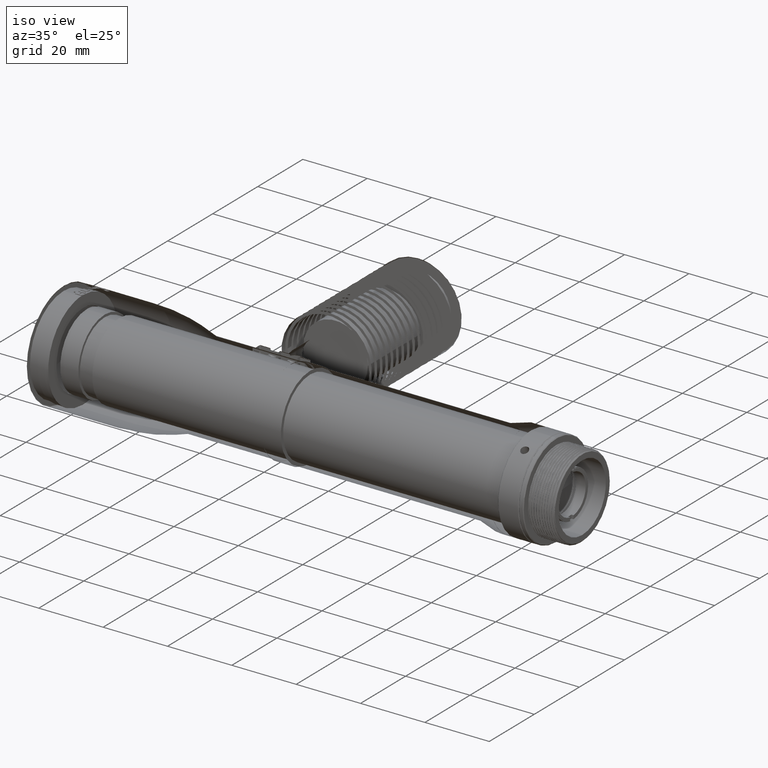
[diagram: clean part render]
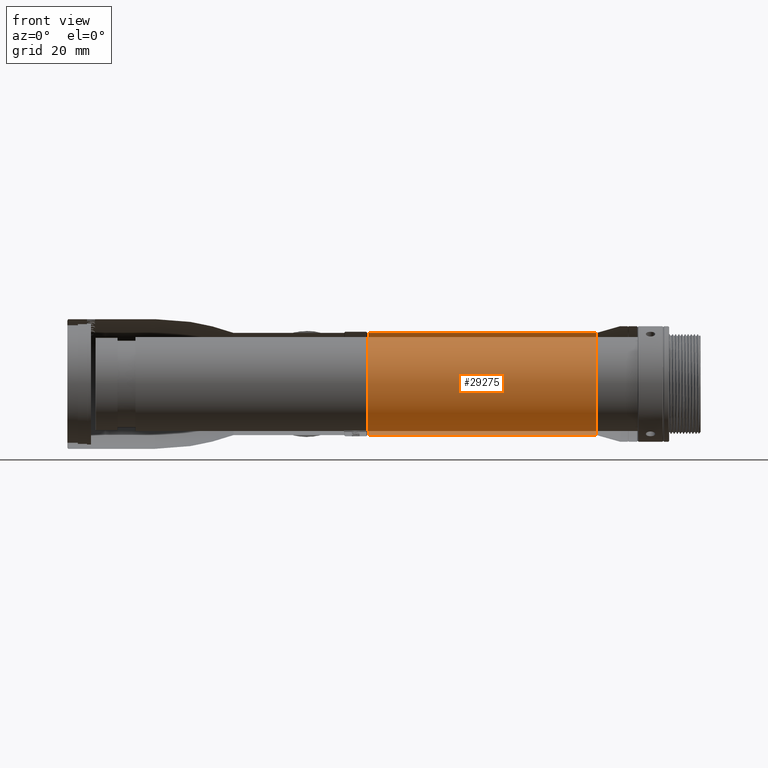
[diagram: tour spotlight — one face highlighted and labeled with its STEP entity id]
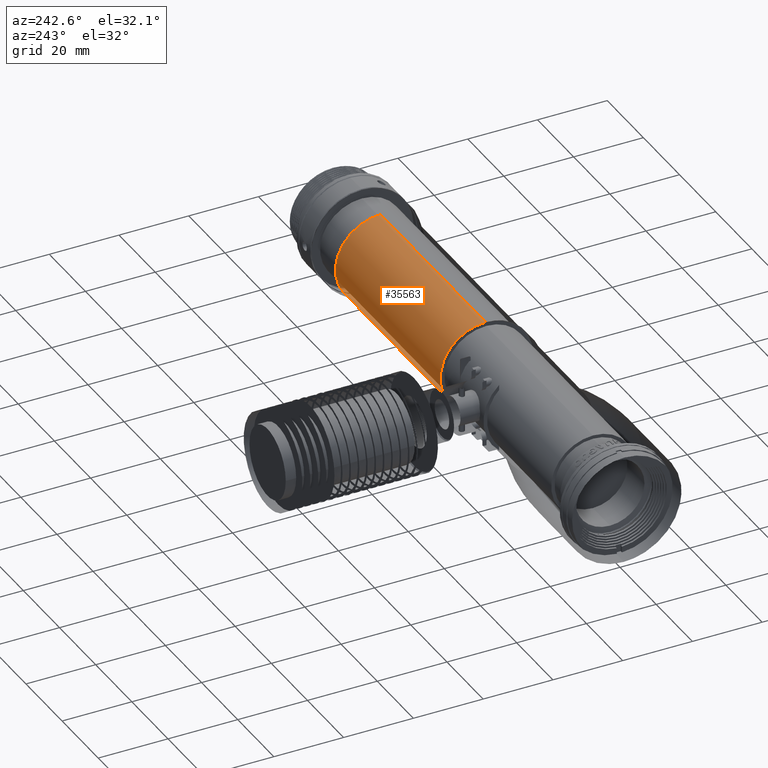
[diagram: tour spotlight — one face highlighted and labeled with its STEP entity id]
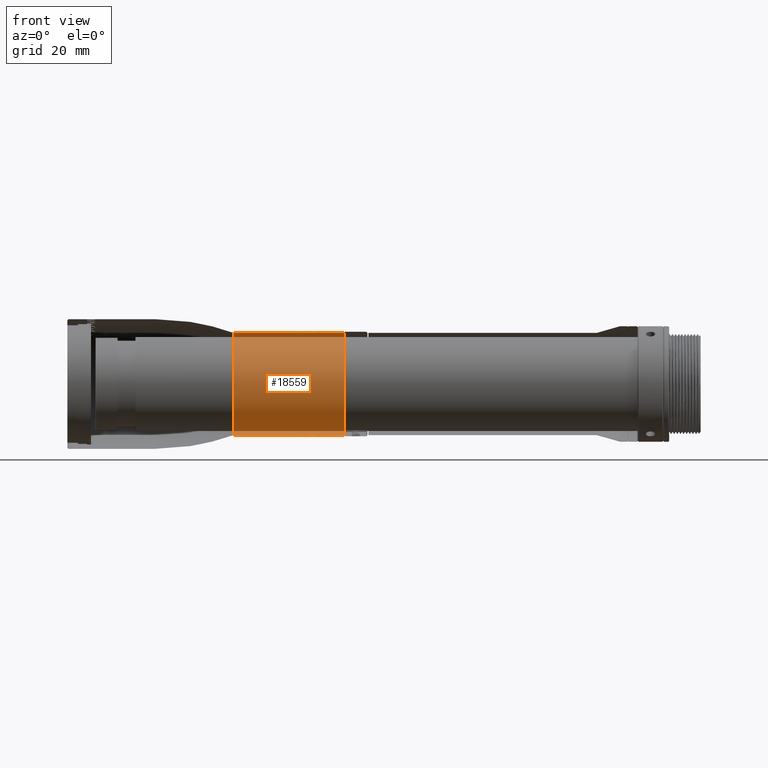
[diagram: tour spotlight — one face highlighted and labeled with its STEP entity id]
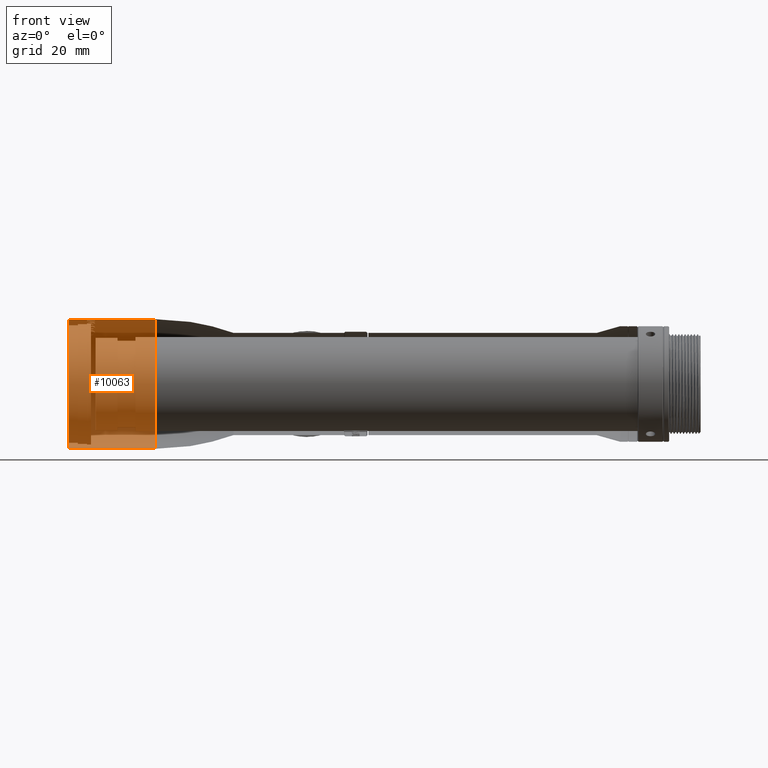
[diagram: tour spotlight — one face highlighted and labeled with its STEP entity id]
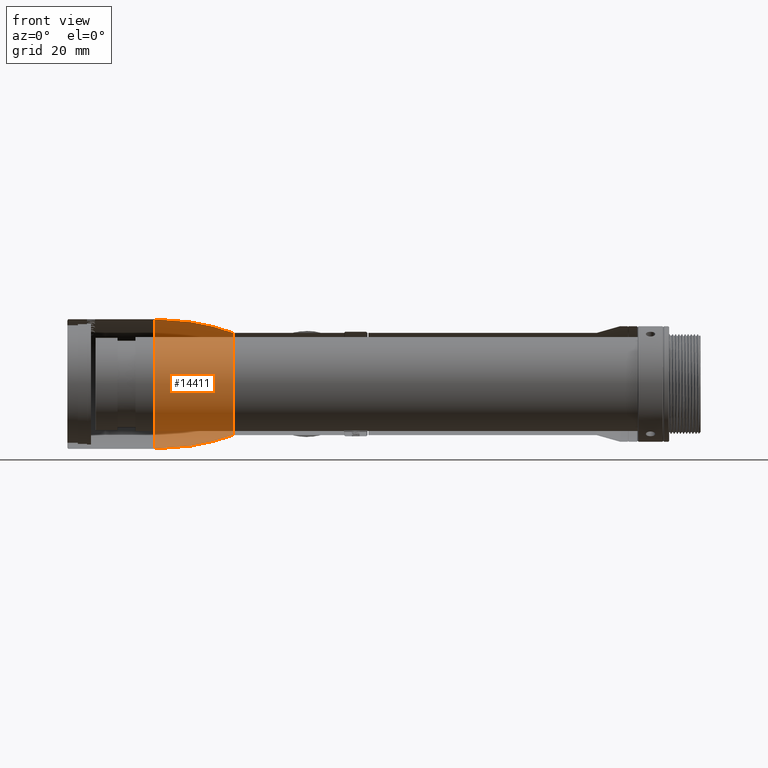
[diagram: tour spotlight — one face highlighted and labeled with its STEP entity id]
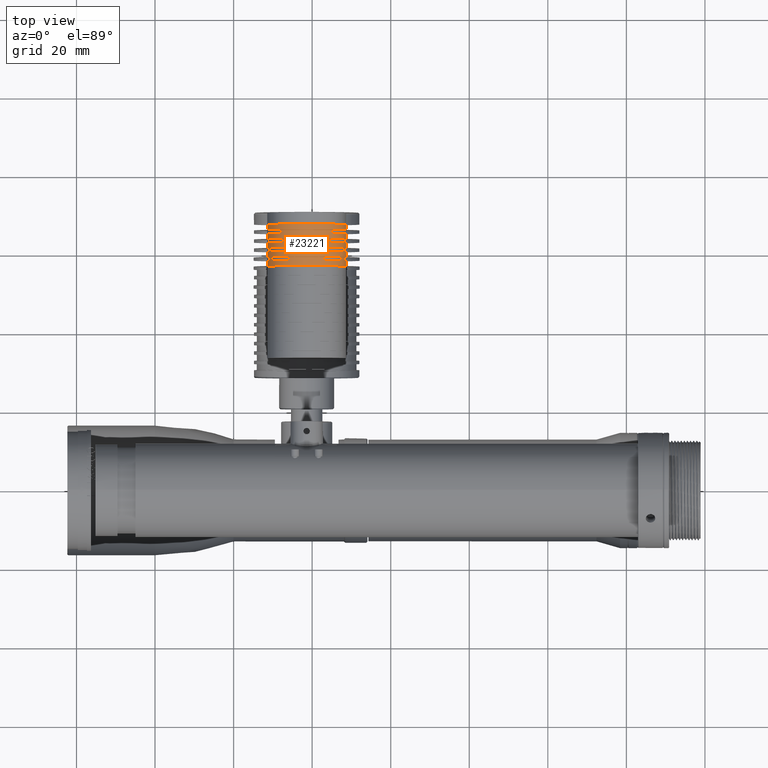
[diagram: tour spotlight — one face highlighted and labeled with its STEP entity id]
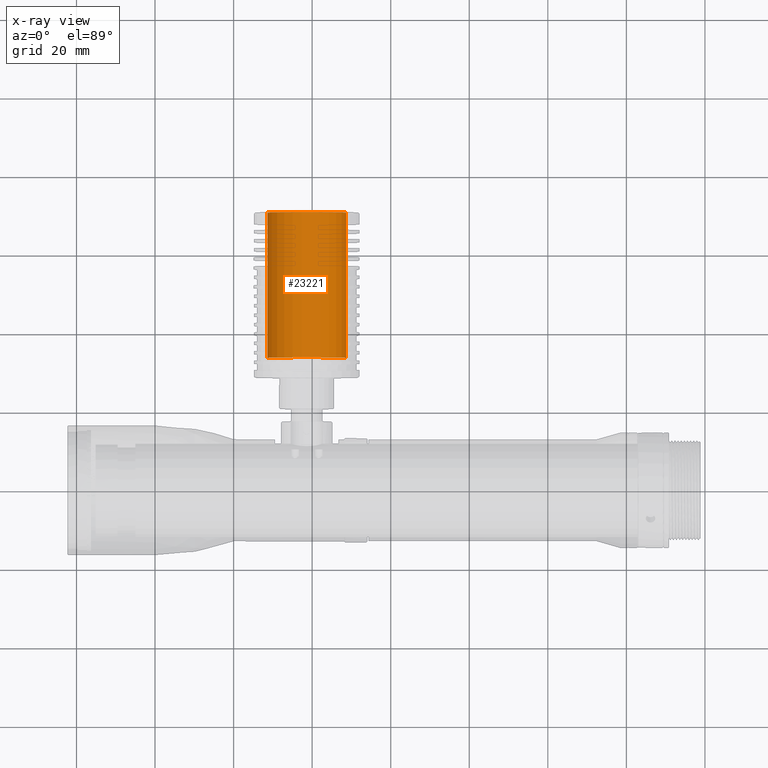
[diagram: x-ray of the same camera — body ghosted, this tour face saturated]
A machine part: a face-by-face anatomy tour. The part has 761 B-rep faces; the first image is the clean iso view, then the 6 largest visible faces are spotlighted one at a time (largest first), each with its STEP entity span.

Face 1 — front view, entity #29275. In plain terms, the highlighted cylindrical surface (partial cylindrical patch) has radius 13 mm, axis along (1, 0, 0).
Definition (entity closure, byte-faithful):
#412 = CARTESIAN_POINT ( 'NONE',  ( 92.39000000000001478, -9.666522257749292635, 8.835184979086342594 ) ) ;
#1483 = CARTESIAN_POINT ( 'NONE',  ( 34.29999999999999005, -7.931864154501726105, 10.33510828815478355 ) ) ;
#1605 = EDGE_CURVE ( 'NONE', #13501, #28853, #22193, .T. ) ;
#2181 = VERTEX_POINT ( 'NONE', #9930 ) ;
#2600 = CARTESIAN_POINT ( 'NONE',  ( 34.29999999999999716, -7.931824045787532640, -10.33504825842191899 ) ) ;
#3558 = CARTESIAN_POINT ( 'NONE',  ( 92.39000000000000057, -1.581817365541474896, -12.99999999985795540 ) ) ;
#3778 = CARTESIAN_POINT ( 'NONE',  ( 92.39000000000000057, -2.853658536585379490, 12.68292682926829329 ) ) ;
#4264 = CARTESIAN_POINT ( 'NONE',  ( 92.39000000000000057, -0.9590292501737647246, 13.00000000000000000 ) ) ;
#4867 = CARTESIAN_POINT ( 'NONE',  ( 34.29999999999999716, -4.186593235167163307, 12.33691583340345233 ) ) ;
#5520 = CARTESIAN_POINT ( 'NONE',  ( 34.30000000000000426, -10.33510828814394600, -7.931864154515256615 ) ) ;
#5740 = CARTESIAN_POINT ( 'NONE',  ( 34.29999999999999716, -1.699168630758976395, -12.91673621503007041 ) ) ;
#5964 = CARTESIAN_POINT ( 'NONE',  ( 34.29999999999999005, -9.795735212901892197, 8.589092148306111341 ) ) ;
#6411 = CARTESIAN_POINT ( 'NONE',  ( 34.29999999999999716, -3.373179743186871971, -12.58368107515033429 ) ) ;
#6964 = CARTESIAN_POINT ( 'NONE',  ( 92.39000000000000057, -2.853658536585379490, 12.68292682926829329 ) ) ;
#7800 = CARTESIAN_POINT ( 'NONE',  ( 92.39000000000001478, -6.118356686606136741, -11.57876753500549860 ) ) ;
#9337 = CARTESIAN_POINT ( 'NONE',  ( 34.30000000000000426, -12.58378801340747444, -3.373012233444433683 ) ) ;
#9564 = CARTESIAN_POINT ( 'NONE',  ( 34.29999999999999005, -8.589092148297998719, -9.795735212907317191 ) ) ;
#9594 = ORIENTED_EDGE ( 'NONE', *, *, #24731, .F. ) ;
#9930 = CARTESIAN_POINT ( 'NONE',  ( 34.29999999999999716, 7.782081103400875554E-10, 13.00000000000000355 ) ) ;
#10153 = VECTOR ( 'NONE', #24171, 1000.000000000000000 ) ;
#11177 = CARTESIAN_POINT ( 'NONE',  ( 92.39000000000000057, -11.50319181616395170, 6.259291031320882936 ) ) ;
#11824 = LINE ( 'NONE', #42284, #18880 ) ;
#11917 = DIRECTION ( 'NONE',  ( 1.000000000000000000, 0.000000000000000000, 0.000000000000000000 ) ) ;
#12128 = EDGE_CURVE ( 'NONE', #28853, #37644, #39884, .T. ) ;
#12242 = CARTESIAN_POINT ( 'NONE',  ( 34.29999999999999716, -10.33504825841836627, 7.931824045792825295 ) ) ;
#12468 = CARTESIAN_POINT ( 'NONE',  ( 34.29999999999999716, -6.513002014016228358, -11.28316166057958547 ) ) ;
#13501 = VERTEX_POINT ( 'NONE', #13770 ) ;
#13770 = CARTESIAN_POINT ( 'NONE',  ( 92.39000000000000057, -7.782080228044050238E-10, -13.00000000000000000 ) ) ;
#14527 = CARTESIAN_POINT ( 'NONE',  ( 92.38999999999995794, -12.28108756732895657, -4.547200714487254380 ) ) ;
#14736 = CARTESIAN_POINT ( 'NONE',  ( 92.39000000000000057, -3.163169588217896511, -12.70812749111405182 ) ) ;
#15271 = FACE_OUTER_BOUND ( 'NONE', #15509, .T. ) ;
#15509 = EDGE_LOOP ( 'NONE', ( #27648, #9594, #40233, #25004, #34211 ) ) ;
#16487 = CARTESIAN_POINT ( 'NONE',  ( 34.29999999999999716, -11.68388531138167075, 5.763148378077739942 ) ) ;
#16707 = CARTESIAN_POINT ( 'NONE',  ( 34.29999999999999716, -12.99996390194789342, 0.8532254950218652878 ) ) ;
#17389 = CARTESIAN_POINT ( 'NONE',  ( 34.29999999999999716, -7.782115874144642859E-10, -12.99999999999999645 ) ) ;
#17884 = CARTESIAN_POINT ( 'NONE',  ( 92.39000000000000057, -7.782080228044050238E-10, -13.00000000000000000 ) ) ;
#18526 = CARTESIAN_POINT ( 'NONE',  ( 34.30000000000001137, -5.763176004887218262, 11.68395201248562998 ) ) ;
#18880 = VECTOR ( 'NONE', #28840, 1000.000000000000000 ) ;
#19396 = CARTESIAN_POINT ( 'NONE',  ( 34.29999999999999716, -7.782115874144642859E-10, -12.99999999999999645 ) ) ;
#19626 = CARTESIAN_POINT ( 'NONE',  ( 34.30000000000000426, -9.795684163652804699, -8.589041096842388257 ) ) ;
#19845 = CARTESIAN_POINT ( 'NONE',  ( 34.29999999999999005, -12.91670008595225205, 1.699350223739310772 ) ) ;
#20005 = CARTESIAN_POINT ( 'NONE',  ( 92.39000000000000057, -2.853658536585379490, 12.68292682926829329 ) ) ;
#20060 = CARTESIAN_POINT ( 'NONE',  ( 34.29999999999999716, -0.8537772353607373521, -13.00000000000000000 ) ) ;
#20781 = CARTESIAN_POINT ( 'NONE',  ( 92.38999999999998636, -12.74580604537255191, -3.007752388076470496 ) ) ;
#21004 = CARTESIAN_POINT ( 'NONE',  ( 92.39000000000001478, -5.875608070869595245, 11.70381886273738736 ) ) ;
#21457 = CARTESIAN_POINT ( 'NONE',  ( 92.39000000000001478, -10.83228925562805856, -7.359596161246910739 ) ) ;
#22193 = B_SPLINE_CURVE_WITH_KNOTS ( 'NONE', 3,
 ( #17884, #3558, #14736, #7800, #34252, #41418, #21457, #14527, #20781, #41851, #28191, #34464, #11177, #412, #24821, #21004, #41194, #3778 ),
 .UNSPECIFIED., .F., .F.,
 ( 4, 2, 2, 2, 2, 2, 2, 2, 4 ),
 ( 0.000000000000000000, 0.06021817101337441358, 0.1204363420267488133, 0.1806545130401232269, 0.2408726840534975988, 0.3010908550668719985, 0.3613090260802465092, 0.4215271970936209089, 0.4817453681069953086 ),
 .UNSPECIFIED. ) ;
#23440 = CARTESIAN_POINT ( 'NONE',  ( 34.29999999999999005, -13.00003609805210658, -0.8532254934654672773 ) ) ;
#23990 = CARTESIAN_POINT ( 'NONE',  ( 92.39000000000000057, 1.542972259520067174E-15, 13.00000000000000355 ) ) ;
#24171 = DIRECTION ( 'NONE',  ( 1.000000000000000000, 0.000000000000000000, 0.000000000000000000 ) ) ;
#24731 = EDGE_CURVE ( 'NONE', #2181, #36291, #28572, .T. ) ;
#24821 = CARTESIAN_POINT ( 'NONE',  ( 92.39000000000000057, -8.510809152259771082, 9.953304664685326486 ) ) ;
#25004 = ORIENTED_EDGE ( 'NONE', *, *, #12128, .F. ) ;
#25237 = CARTESIAN_POINT ( 'NONE',  ( 34.29999999999999716, 7.782081103400875554E-10, 13.00000000000000355 ) ) ;
#26485 = CARTESIAN_POINT ( 'NONE',  ( 63.34499999999999886, 7.703719777548943412E-31, -12.99999999999999289 ) ) ;
#26795 = CARTESIAN_POINT ( 'NONE',  ( 34.29999999999999716, -12.91662927738016897, -1.699336137448371309 ) ) ;
#27648 = ORIENTED_EDGE ( 'NONE', *, *, #27665, .F. ) ;
#27665 = EDGE_CURVE ( 'NONE', #36291, #13501, #39276, .T. ) ;
#28191 = CARTESIAN_POINT ( 'NONE',  ( 92.38999999999998636, -12.97971485651550694, 1.740444890763815255 ) ) ;
#28572 = B_SPLINE_CURVE_WITH_KNOTS ( 'NONE', 3,
 ( #25237, #35983, #38917, #35548, #4867, #18526, #32191, #1483, #28828, #5964, #12242, #37112, #16487, #40027, #29490, #19845, #16707, #23440, #26795, #9337, #29711, #43369, #33298, #5520, #19626, #9564, #2600, #12468, #33747, #36436, #6411, #5740, #20060, #19396 ),
 .UNSPECIFIED., .F., .F.,
 ( 4, 2, 2, 2, 2, 2, 2, 2, 2, 2, 2, 2, 2, 2, 2, 2, 4 ),
 ( 0.5000000000000000000, 0.5312500000000000000, 0.5625000000000000000, 0.5937499999999998890, 0.6249999999999998890, 0.6562499999999998890, 0.6875000000000000000, 0.7187500000000000000, 0.7500000000000000000, 0.7812500000000000000, 0.8125000000000000000, 0.8437500000000000000, 0.8750000000000001110, 0.9062500000000000000, 0.9375000000000000000, 0.9687500000000000000, 1.000000000000000000 ),
 .UNSPECIFIED. ) ;
#28828 = CARTESIAN_POINT ( 'NONE',  ( 34.29999999999999716, -8.589041096847786605, 9.795684163644681419 ) ) ;
#28840 = DIRECTION ( 'NONE',  ( 1.000000000000000000, 0.000000000000000000, 0.000000000000000000 ) ) ;
#28853 = VERTEX_POINT ( 'NONE', #20005 ) ;
#29275 = ADVANCED_FACE ( 'NONE', ( #15271 ), #42591, .F. ) ;
#29490 = CARTESIAN_POINT ( 'NONE',  ( 34.29999999999999716, -12.58371720422806561, 3.372998150206568457 ) ) ;
#29711 = CARTESIAN_POINT ( 'NONE',  ( 34.29999999999999716, -12.33691583341062881, -4.186593235153699410 ) ) ;
#32191 = CARTESIAN_POINT ( 'NONE',  ( 34.30000000000000426, -6.512961902713818141, 11.28310163257609489 ) ) ;
#32324 = EDGE_CURVE ( 'NONE', #2181, #37644, #11824, .T. ) ;
#33298 = CARTESIAN_POINT ( 'NONE',  ( 34.29999999999999716, -11.28310163258693066, -6.512961902700246775 ) ) ;
#33747 = CARTESIAN_POINT ( 'NONE',  ( 34.29999999999999716, -5.763148378065245048, -11.68388531138546860 ) ) ;
#34050 = CARTESIAN_POINT ( 'NONE',  ( 92.39000000000000057, 1.542972259520067174E-15, 13.00000000000000355 ) ) ;
#34211 = ORIENTED_EDGE ( 'NONE', *, *, #1605, .F. ) ;
#34252 = CARTESIAN_POINT ( 'NONE',  ( 92.39000000000001478, -7.491322574091244135, -10.74161218184432087 ) ) ;
#34464 = CARTESIAN_POINT ( 'NONE',  ( 92.39000000000000057, -12.18360818679668434, 4.802274224245849155 ) ) ;
#35548 = CARTESIAN_POINT ( 'NONE',  ( 34.29999999999999716, -3.373012233437527208, 12.58378801340870901 ) ) ;
#35983 = CARTESIAN_POINT ( 'NONE',  ( 34.30000000000001137, -0.8532254934661319679, 13.00003609805211546 ) ) ;
#36291 = VERTEX_POINT ( 'NONE', #17389 ) ;
#36436 = CARTESIAN_POINT ( 'NONE',  ( 34.29999999999999005, -4.186620864865057356, -12.33698253331233374 ) ) ;
#37112 = CARTESIAN_POINT ( 'NONE',  ( 34.29999999999999716, -11.28316166058311509, 6.513002014010933927 ) ) ;
#37644 = VERTEX_POINT ( 'NONE', #34050 ) ;
#38155 = AXIS2_PLACEMENT_3D ( 'NONE', #39472, #11917, #39250 ) ;
#38917 = CARTESIAN_POINT ( 'NONE',  ( 34.29999999999999716, -1.699336137455293771, 12.91662927737892552 ) ) ;
#39250 = DIRECTION ( 'NONE',  ( 0.000000000000000000, 0.000000000000000000, 1.000000000000000000 ) ) ;
#39276 = LINE ( 'NONE', #26485, #10153 ) ;
#39472 = CARTESIAN_POINT ( 'NONE',  ( 63.34499999999999886, 1.592040838891559884E-15, 6.661338147750940031E-15 ) ) ;
#39884 = B_SPLINE_CURVE_WITH_KNOTS ( 'NONE', 3,
 ( #6964, #41235, #4264, #23990 ),
 .UNSPECIFIED., .F., .F.,
 ( 4, 4 ),
 ( 0.4817453681069953086, 0.5182546318781912076 ),
 .UNSPECIFIED. ) ;
#40027 = CARTESIAN_POINT ( 'NONE',  ( 34.29999999999999005, -12.33698253331617067, 4.186620864852536705 ) ) ;
#40233 = ORIENTED_EDGE ( 'NONE', *, *, #32324, .T. ) ;
#41194 = CARTESIAN_POINT ( 'NONE',  ( 92.39000000000000057, -4.396894989633287842, 12.33569862733251021 ) ) ;
#41235 = CARTESIAN_POINT ( 'NONE',  ( 92.39000000000000057, -1.918020243732920349, 12.89344544516009528 ) ) ;
#41418 = CARTESIAN_POINT ( 'NONE',  ( 92.39000000000001478, -9.848635448693872974, -8.631716282001269391 ) ) ;
#41851 = CARTESIAN_POINT ( 'NONE',  ( 92.39000000000001478, -13.09517105627043598, 0.1365327112906558338 ) ) ;
#42284 = CARTESIAN_POINT ( 'NONE',  ( 63.34499999999999886, 1.592040838891559884E-15, 13.00000000000000711 ) ) ;
#42591 = CYLINDRICAL_SURFACE ( 'NONE', #38155, 13.00000000000000000 ) ;
#43369 = CARTESIAN_POINT ( 'NONE',  ( 34.29999999999999005, -11.68395201247841086, -5.763176004900699922 ) ) ;

Face 2 — auxiliary view, entity #35563. In plain terms, the highlighted cylindrical surface (partial cylindrical patch) has radius 13 mm, axis along (1, 0, 0).
Definition (entity closure, byte-faithful):
#101 = ORIENTED_EDGE ( 'NONE', *, *, #32324, .F. ) ;
#378 = B_SPLINE_CURVE_WITH_KNOTS ( 'NONE', 3,
 ( #32985, #30678, #23736, #5653 ),
 .UNSPECIFIED., .F., .F.,
 ( 4, 4 ),
 ( 0.000000000000000000, 1.000000000000000000 ),
 .UNSPECIFIED. ) ;
#643 = CARTESIAN_POINT ( 'NONE',  ( 34.29999999999999716, 11.68388531138186792, -5.763148378072816769 ) ) ;
#1077 = CARTESIAN_POINT ( 'NONE',  ( 34.29999999999999716, 12.58371720422810291, -3.372998150210517743 ) ) ;
#1739 = ORIENTED_EDGE ( 'NONE', *, *, #27665, .T. ) ;
#2037 = CARTESIAN_POINT ( 'NONE',  ( 92.39000000000000057, 1.542972259520067174E-15, 13.00000000000000355 ) ) ;
#2181 = VERTEX_POINT ( 'NONE', #9930 ) ;
#2524 = EDGE_CURVE ( 'NONE', #36291, #2181, #5062, .T. ) ;
#3322 = CARTESIAN_POINT ( 'NONE',  ( 92.39000000000001478, 9.666522257919407224, -8.835184978908936060 ) ) ;
#3787 = CARTESIAN_POINT ( 'NONE',  ( 34.29999999999999716, 9.795684163646027898, 8.589041096847790158 ) ) ;
#3810 = AXIS2_PLACEMENT_3D ( 'NONE', #31758, #8001, #35114 ) ;
#3976 = CYLINDRICAL_SURFACE ( 'NONE', #3810, 13.00000000000000000 ) ;
#4227 = CARTESIAN_POINT ( 'NONE',  ( 34.29999999999999716, -7.782115874144642859E-10, -12.99999999999999645 ) ) ;
#4642 = CARTESIAN_POINT ( 'NONE',  ( 92.39000000000000057, 2.853658536585369720, -12.68292682926830039 ) ) ;
#5062 = B_SPLINE_CURVE_WITH_KNOTS ( 'NONE', 3,
 ( #4227, #11407, #35362, #7808, #31341, #41645, #38065, #21240, #28200, #18336, #34920, #18119, #643, #32003, #1077, #38506, #14747, #34698, #41860, #38725, #7368, #25049, #8024, #17892, #3787, #41202, #37854, #10747, #35137, #24174, #13883, #42082, #10530, #31562 ),
 .UNSPECIFIED., .F., .F.,
 ( 4, 2, 2, 2, 2, 2, 2, 2, 2, 2, 2, 2, 2, 2, 2, 2, 4 ),
 ( 0.000000000000000000, 0.03125000000000000694, 0.06250000000000001388, 0.09375000000000002776, 0.1250000000000000278, 0.1562500000000000278, 0.1875000000000000000, 0.2187500000000000000, 0.2499999999999999722, 0.2812499999999999445, 0.3124999999999999445, 0.3437499999999999445, 0.3749999999999999445, 0.4062500000000000000, 0.4375000000000000000, 0.4687500000000000000, 0.5000000000000000000 ),
 .UNSPECIFIED. ) ;
#5653 = CARTESIAN_POINT ( 'NONE',  ( 92.39000000000000057, 2.853658536585369720, -12.68292682926830039 ) ) ;
#6686 = CARTESIAN_POINT ( 'NONE',  ( 92.38999999999997215, 11.50319181633271448, -6.259291031023035856 ) ) ;
#7368 = CARTESIAN_POINT ( 'NONE',  ( 34.29999999999999716, 12.33691583340758413, 4.186593235159635107 ) ) ;
#7808 = CARTESIAN_POINT ( 'NONE',  ( 34.29999999999999716, 3.373012233443347441, -12.58378801340846920 ) ) ;
#8001 = DIRECTION ( 'NONE',  ( 1.000000000000000000, 0.000000000000000000, 0.000000000000000000 ) ) ;
#8024 = CARTESIAN_POINT ( 'NONE',  ( 34.29999999999999716, 11.28310163258151810, 6.512961902707043116 ) ) ;
#8996 = CARTESIAN_POINT ( 'NONE',  ( 92.38999999999998636, 4.396894989680760091, -12.33569862732182365 ) ) ;
#9227 = CARTESIAN_POINT ( 'NONE',  ( 92.39000000000000057, 5.875608070960470997, -11.70381886269833771 ) ) ;
#9930 = CARTESIAN_POINT ( 'NONE',  ( 34.29999999999999716, 7.782081103400875554E-10, 13.00000000000000355 ) ) ;
#10062 = CARTESIAN_POINT ( 'NONE',  ( 92.39000000000000057, 8.510809152412029732, -9.953304664562867998 ) ) ;
#10153 = VECTOR ( 'NONE', #24171, 1000.000000000000000 ) ;
#10530 = CARTESIAN_POINT ( 'NONE',  ( 34.29999999999999716, 0.8532254950225568457, 12.99996390194788631 ) ) ;
#10747 = CARTESIAN_POINT ( 'NONE',  ( 34.29999999999999005, 6.513002014020877084, 11.28316166057737746 ) ) ;
#11310 = ORIENTED_EDGE ( 'NONE', *, *, #35597, .T. ) ;
#11407 = CARTESIAN_POINT ( 'NONE',  ( 34.30000000000000426, 0.8534070107596134491, -13.00000000000000000 ) ) ;
#11824 = LINE ( 'NONE', #42284, #18880 ) ;
#12357 = CARTESIAN_POINT ( 'NONE',  ( 92.39000000000001478, 9.848635448148788996, 8.631716282632128312 ) ) ;
#13501 = VERTEX_POINT ( 'NONE', #13770 ) ;
#13770 = CARTESIAN_POINT ( 'NONE',  ( 92.39000000000000057, -7.782080228044050238E-10, -13.00000000000000000 ) ) ;
#13883 = CARTESIAN_POINT ( 'NONE',  ( 34.29999999999999716, 3.372998150206215850, 12.58371720422808870 ) ) ;
#14747 = CARTESIAN_POINT ( 'NONE',  ( 34.30000000000000426, 12.99996390194789520, -0.8532254950192939003 ) ) ;
#16365 = ORIENTED_EDGE ( 'NONE', *, *, #2524, .F. ) ;
#17389 = CARTESIAN_POINT ( 'NONE',  ( 34.29999999999999716, -7.782115874144642859E-10, -12.99999999999999645 ) ) ;
#17892 = CARTESIAN_POINT ( 'NONE',  ( 34.29999999999999716, 10.33510828814935856, 7.931864154508494913 ) ) ;
#18119 = CARTESIAN_POINT ( 'NONE',  ( 34.30000000000000426, 11.28316166058048609, -6.513002014012836405 ) ) ;
#18336 = CARTESIAN_POINT ( 'NONE',  ( 34.29999999999999716, 9.795735212911422352, -8.589092148293900664 ) ) ;
#18503 = EDGE_LOOP ( 'NONE', ( #16365, #1739, #11310, #39949, #101 ) ) ;
#18880 = VECTOR ( 'NONE', #28840, 1000.000000000000000 ) ;
#19281 = CARTESIAN_POINT ( 'NONE',  ( 92.39000000000000057, 3.163169587173967567, 12.70812749137995645 ) ) ;
#20546 = CARTESIAN_POINT ( 'NONE',  ( 92.39000000000000057, 12.97971485658636759, -1.740444890279651213 ) ) ;
#21240 = CARTESIAN_POINT ( 'NONE',  ( 34.29999999999999716, 7.931864154508456721, -10.33510828815074944 ) ) ;
#23172 = EDGE_CURVE ( 'NONE', #37644, #35583, #38896, .T. ) ;
#23736 = CARTESIAN_POINT ( 'NONE',  ( 92.39000000000000057, 1.918020243353309562, -12.89344544524549896 ) ) ;
#24171 = DIRECTION ( 'NONE',  ( 1.000000000000000000, 0.000000000000000000, 0.000000000000000000 ) ) ;
#24174 = CARTESIAN_POINT ( 'NONE',  ( 34.29999999999999716, 4.186620864860403302, 12.33698253331453287 ) ) ;
#25049 = CARTESIAN_POINT ( 'NONE',  ( 34.30000000000000426, 11.68395201248149817, 5.763176004894742022 ) ) ;
#26485 = CARTESIAN_POINT ( 'NONE',  ( 63.34499999999999886, 7.703719777548943412E-31, -12.99999999999999289 ) ) ;
#27665 = EDGE_CURVE ( 'NONE', #36291, #13501, #39276, .T. ) ;
#28200 = CARTESIAN_POINT ( 'NONE',  ( 34.29999999999999716, 8.589041096838252898, -9.795684163656908083 ) ) ;
#28840 = DIRECTION ( 'NONE',  ( 1.000000000000000000, 0.000000000000000000, 0.000000000000000000 ) ) ;
#29378 = CARTESIAN_POINT ( 'NONE',  ( 92.39000000000000057, 7.491322573331574475, 10.74161218238129045 ) ) ;
#30436 = CARTESIAN_POINT ( 'NONE',  ( 92.39000000000004320, 1.581817364422754668, 13.00000000000000000 ) ) ;
#30678 = CARTESIAN_POINT ( 'NONE',  ( 92.39000000000000057, 0.9590292493955594466, -13.00000000008610712 ) ) ;
#31341 = CARTESIAN_POINT ( 'NONE',  ( 34.29999999999999716, 4.186593235160425586, -12.33691583340845277 ) ) ;
#31562 = CARTESIAN_POINT ( 'NONE',  ( 34.29999999999999716, 7.782081103400875554E-10, 13.00000000000000355 ) ) ;
#31758 = CARTESIAN_POINT ( 'NONE',  ( 63.34499999999999886, 1.592040838891559884E-15, 6.661338147750940031E-15 ) ) ;
#32003 = CARTESIAN_POINT ( 'NONE',  ( 34.29999999999999716, 12.33698253331597705, -4.186620864857483859 ) ) ;
#32324 = EDGE_CURVE ( 'NONE', #2181, #37644, #11824, .T. ) ;
#32960 = CARTESIAN_POINT ( 'NONE',  ( 92.39000000000000057, 12.18360818694617009, -4.802274223882644577 ) ) ;
#32985 = CARTESIAN_POINT ( 'NONE',  ( 92.39000000000000057, -7.782080228044050238E-10, -13.00000000000000000 ) ) ;
#34013 = CARTESIAN_POINT ( 'NONE',  ( 92.39000000000000057, 6.118356685741814793, 11.57876753546887194 ) ) ;
#34050 = CARTESIAN_POINT ( 'NONE',  ( 92.39000000000000057, 1.542972259520067174E-15, 13.00000000000000355 ) ) ;
#34235 = CARTESIAN_POINT ( 'NONE',  ( 92.39000000000000057, 13.09517105628194322, -0.1365327107510524440 ) ) ;
#34698 = CARTESIAN_POINT ( 'NONE',  ( 34.30000000000000426, 13.00003609805211013, 0.8532254934628953347 ) ) ;
#34920 = CARTESIAN_POINT ( 'NONE',  ( 34.29999999999999716, 10.33504825842099351, -7.931824045790965449 ) ) ;
#35114 = DIRECTION ( 'NONE',  ( 0.000000000000000000, 0.000000000000000000, 1.000000000000000000 ) ) ;
#35137 = CARTESIAN_POINT ( 'NONE',  ( 34.29999999999999716, 5.763148378069876010, 11.68388531138330677 ) ) ;
#35362 = CARTESIAN_POINT ( 'NONE',  ( 34.29999999999999716, 1.699336137449482198, -12.91662927737913513 ) ) ;
#35563 = ADVANCED_FACE ( 'NONE', ( #41397 ), #3976, .F. ) ;
#35583 = VERTEX_POINT ( 'NONE', #4642 ) ;
#35597 = EDGE_CURVE ( 'NONE', #13501, #35583, #378, .T. ) ;
#36291 = VERTEX_POINT ( 'NONE', #17389 ) ;
#37170 = CARTESIAN_POINT ( 'NONE',  ( 92.39000000000000057, 2.853658536585369720, -12.68292682926830039 ) ) ;
#37383 = CARTESIAN_POINT ( 'NONE',  ( 92.39000000000000057, 10.83228925519274277, 7.359596161898108946 ) ) ;
#37644 = VERTEX_POINT ( 'NONE', #34050 ) ;
#37854 = CARTESIAN_POINT ( 'NONE',  ( 34.30000000000000426, 7.931824045782907895, 10.33504825842410568 ) ) ;
#38065 = CARTESIAN_POINT ( 'NONE',  ( 34.29999999999999716, 6.512961902707083972, -11.28310163258014853 ) ) ;
#38506 = CARTESIAN_POINT ( 'NONE',  ( 34.30000000000001137, 12.91670008595226093, -1.699350223735386134 ) ) ;
#38725 = CARTESIAN_POINT ( 'NONE',  ( 34.30000000000000426, 12.58378801340901987, 3.373012233439225849 ) ) ;
#38896 = B_SPLINE_CURVE_WITH_KNOTS ( 'NONE', 3,
 ( #2037, #30436, #19281, #34013, #29378, #12357, #37383, #42817, #40745, #34235, #20546, #32960, #6686, #3322, #10062, #9227, #8996, #37170 ),
 .UNSPECIFIED., .F., .F.,
 ( 4, 2, 2, 2, 2, 2, 2, 2, 4 ),
 ( 0.5182546318781912076, 0.5784728028934172928, 0.6386909739086434890, 0.6989091449238695741, 0.7591273159390956593, 0.8193454869543217445, 0.8795636579695478297, 0.9397818289847740258, 1.000000000000000000 ),
 .UNSPECIFIED. ) ;
#39276 = LINE ( 'NONE', #26485, #10153 ) ;
#39949 = ORIENTED_EDGE ( 'NONE', *, *, #23172, .F. ) ;
#40745 = CARTESIAN_POINT ( 'NONE',  ( 92.39000000000000057, 12.74580604523215044, 3.007752388697074508 ) ) ;
#41202 = CARTESIAN_POINT ( 'NONE',  ( 34.29999999999999716, 8.589092148304773744, 9.795735212901892197 ) ) ;
#41397 = FACE_OUTER_BOUND ( 'NONE', #18503, .T. ) ;
#41645 = CARTESIAN_POINT ( 'NONE',  ( 34.29999999999999716, 5.763176004893974635, -11.68395201248065085 ) ) ;
#41860 = CARTESIAN_POINT ( 'NONE',  ( 34.30000000000001137, 12.91662927737862532, 1.699336137453572926 ) ) ;
#42082 = CARTESIAN_POINT ( 'NONE',  ( 34.29999999999999005, 1.699350223739644949, 12.91670008595226093 ) ) ;
#42284 = CARTESIAN_POINT ( 'NONE',  ( 63.34499999999999886, 1.592040838891559884E-15, 13.00000000000000711 ) ) ;
#42817 = CARTESIAN_POINT ( 'NONE',  ( 92.39000000000001478, 12.28108756709603533, 4.547200715133285165 ) ) ;

Face 3 — front view, entity #18559. In plain terms, the highlighted cylindrical surface (partial cylindrical patch) has radius 13 mm, axis along (1, 0, 0).
Definition (entity closure, byte-faithful):
#71 = VERTEX_POINT ( 'NONE', #1690 ) ;
#621 = CARTESIAN_POINT ( 'NONE',  ( 28.10000387800232247, -12.68292682811195426, -2.853658541724549025 ) ) ;
#1280 = CARTESIAN_POINT ( 'NONE',  ( 28.09999537395382774, -12.99999904580981536, 1.701702703287668372 ) ) ;
#1281 = DIRECTION ( 'NONE',  ( 1.000000000000000000, 0.000000000000000000, 0.000000000000000000 ) ) ;
#1690 = CARTESIAN_POINT ( 'NONE',  ( 3.356336042469099828E-11, 1.379713910231190061E-15, -13.00000000005491962 ) ) ;
#1957 = CARTESIAN_POINT ( 'NONE',  ( 28.10000387800232247, -12.68292682811195426, -2.853658541724549025 ) ) ;
#2574 = VERTEX_POINT ( 'NONE', #1957 ) ;
#2992 = CARTESIAN_POINT ( 'NONE',  ( 28.09999960763600058, -13.00000026052371993, 7.289437869759200795E-06 ) ) ;
#3531 = EDGE_CURVE ( 'NONE', #41502, #11516, #9191, .T. ) ;
#5721 = CARTESIAN_POINT ( 'NONE',  ( 1.137115533565490314E-09, -12.99999999917109506, 12.99999999780319548 ) ) ;
#5723 = CARTESIAN_POINT ( 'NONE',  ( 28.10000387800229760, -10.24845605894276268, -8.130585046171400876 ) ) ;
#7105 = ORIENTED_EDGE ( 'NONE', *, *, #29519, .T. ) ;
#8008 = CARTESIAN_POINT ( 'NONE',  ( 28.09999535590766229, -12.66164313298676980, 3.402728383859285444 ) ) ;
#8451 = CARTESIAN_POINT ( 'NONE',  ( 28.09999519349211283, -1.701695406796888577, 13.00000000091996633 ) ) ;
#8995 = CARTESIAN_POINT ( 'NONE',  ( 14.05000000000000071, 1.592040838891559884E-15, 13.00000000000000711 ) ) ;
#9191 = B_SPLINE_CURVE_WITH_KNOTS ( 'NONE', 3,
 ( #35559, #8451, #18749, #42061, #28620, #35120, #42714, #8008, #1280, #21877 ),
 .UNSPECIFIED., .F., .F.,
 ( 4, 2, 2, 2, 4 ),
 ( 0.5000000000000000000, 0.6250000000000000000, 0.7500000000000000000, 0.8750000000000000000, 1.000000000000000000 ),
 .UNSPECIFIED. ) ;
#9210 = CARTESIAN_POINT ( 'NONE',  ( 14.05000000000000071, 1.592040838891559884E-15, 6.661338147750940031E-15 ) ) ;
#11516 = VERTEX_POINT ( 'NONE', #2992 ) ;
#12222 = CARTESIAN_POINT ( 'NONE',  ( 28.10000387800229760, -6.979453277795990118, -11.06456039470928587 ) ) ;
#12437 = ORIENTED_EDGE ( 'NONE', *, *, #3531, .T. ) ;
#12452 = CARTESIAN_POINT ( 'NONE',  ( 28.10000387800230826, -5.682617002941710460, -11.78325628945515291 ) ) ;
#14729 = CARTESIAN_POINT ( 'NONE',  ( 14.05000000000000071, 7.703719777548943412E-31, -12.99999999999999289 ) ) ;
#15899 = ORIENTED_EDGE ( 'NONE', *, *, #29187, .T. ) ;
#16467 = CARTESIAN_POINT ( 'NONE',  ( 28.10000387800235089, -3.021081983818604781E-16, -13.00000000000000000 ) ) ;
#17921 = B_SPLINE_CURVE_WITH_KNOTS ( 'NONE', 3,
 ( #43125, #23198, #36189, #5723, #26557, #12222, #12452, #29467, #33278, #16467 ),
 .UNSPECIFIED., .F., .F.,
 ( 4, 2, 2, 2, 4 ),
 ( 0.1408934568415931843, 0.3556700926311949784, 0.5704467284207966893, 0.7852233642103984002, 1.000000000000000000 ),
 .UNSPECIFIED. ) ;
#18102 = VECTOR ( 'NONE', #19280, 1000.000000000000000 ) ;
#18341 = CARTESIAN_POINT ( 'NONE',  ( 5.740104154756069876E-10, -12.99999999917110038, -1.180793274493389949E-09 ) ) ;
#18472 = CARTESIAN_POINT ( 'NONE',  ( 28.10000387800235089, -3.021081983818604781E-16, -13.00000000000000000 ) ) ;
#18559 = ADVANCED_FACE ( 'NONE', ( #33835 ), #26669, .F. ) ;
#18749 = CARTESIAN_POINT ( 'NONE',  ( 28.09999521153829605, -3.402721277276765655, 12.66164504282918379 ) ) ;
#19280 = DIRECTION ( 'NONE',  ( 1.000000000000000000, 0.000000000000000000, 0.000000000000000000 ) ) ;
#20978 = VECTOR ( 'NONE', #1281, 1000.000000000000000 ) ;
#21221 = LINE ( 'NONE', #14729, #20978 ) ;
#21761 = LINE ( 'NONE', #8995, #18102 ) ;
#21877 = CARTESIAN_POINT ( 'NONE',  ( 28.09999960763600058, -13.00000026052371993, 7.289437869759200795E-06 ) ) ;
#22838 = VERTEX_POINT ( 'NONE', #18472 ) ;
#23198 = CARTESIAN_POINT ( 'NONE',  ( 28.10000387800230470, -12.36201345267041241, -4.279940207655061002 ) ) ;
#24149 = CARTESIAN_POINT ( 'NONE',  ( 28.10000387800230115, -13.00000053775177378, -0.9590243923057933939 ) ) ;
#26557 = CARTESIAN_POINT ( 'NONE',  ( 28.10000387800229760, -9.262617954505650175, -9.238028654100187254 ) ) ;
#26669 = CYLINDRICAL_SURFACE ( 'NONE', #32757, 13.00000000000000000 ) ;
#28091 = VERTEX_POINT ( 'NONE', #35737 ) ;
#28620 = CARTESIAN_POINT ( 'NONE',  ( 28.09999526567681016, -7.989104871414323128, 10.39567076407177559 ) ) ;
#28857 = ORIENTED_EDGE ( 'NONE', *, *, #43535, .T. ) ;
#29187 = EDGE_CURVE ( 'NONE', #28091, #41502, #21761, .T. ) ;
#29467 = CARTESIAN_POINT ( 'NONE',  ( 28.10000387800230115, -2.923563471895896271, -12.75108000958752896 ) ) ;
#29519 = EDGE_CURVE ( 'NONE', #11516, #2574, #34627, .T. ) ;
#29807 = DIRECTION ( 'NONE',  ( 1.000000000000000000, 0.000000000000000000, 0.000000000000000000 ) ) ;
#30795 = EDGE_LOOP ( 'NONE', ( #41811, #37525, #15899, #12437, #7105, #28857 ) ) ;
#32308 = EDGE_CURVE ( 'NONE', #71, #22838, #21221, .T. ) ;
#32757 = AXIS2_PLACEMENT_3D ( 'NONE', #9210, #29807, #32945 ) ;
#32945 = DIRECTION ( 'NONE',  ( 0.000000000000000000, 0.000000000000000000, 1.000000000000000000 ) ) ;
#33278 = CARTESIAN_POINT ( 'NONE',  ( 28.10000387800229404, -1.461938707712031160, -12.99999999999999289 ) ) ;
#33835 = FACE_OUTER_BOUND ( 'NONE', #30795, .T. ) ;
#34237 = CARTESIAN_POINT ( 'NONE',  ( 28.10000387800230115, -12.89344597814167237, -1.918017876696192392 ) ) ;
#34450 = CARTESIAN_POINT ( 'NONE',  ( 28.09999960763600058, -13.00000026052371993, 7.289437869759200795E-06 ) ) ;
#34627 = B_SPLINE_CURVE_WITH_KNOTS ( 'NONE', 3,
 ( #34450, #24149, #34237, #621 ),
 .UNSPECIFIED., .F., .F.,
 ( 4, 4 ),
 ( 0.000000000000000000, 0.1408934568415931843 ),
 .UNSPECIFIED. ) ;
#35120 = CARTESIAN_POINT ( 'NONE',  ( 28.09999530176915172, -10.39566628003688997, 7.989110706176040466 ) ) ;
#35559 = CARTESIAN_POINT ( 'NONE',  ( 28.09999517544595804, 1.408784598356160155E-15, 13.00000030072293811 ) ) ;
#35737 = CARTESIAN_POINT ( 'NONE',  ( 8.179323884860399496E-10, -1.247196782036648093E-10, 12.99999999853546129 ) ) ;
#36189 = CARTESIAN_POINT ( 'NONE',  ( 28.10000387800230115, -11.79832022055001417, -5.651274613613050946 ) ) ;
#36417 = CARTESIAN_POINT ( 'NONE',  ( 1.090529738572779876E-11, -12.99999999917109506, -13.00000000016480506 ) ) ;
#37525 = ORIENTED_EDGE ( 'NONE', *, *, #38878, .F. ) ;
#38878 = EDGE_CURVE ( 'NONE', #28091, #71, #40304, .T. ) ;
#40007 = CARTESIAN_POINT ( 'NONE',  ( 8.179323884860399496E-10, -1.247196782036648093E-10, 12.99999999853546129 ) ) ;
#40228 = CARTESIAN_POINT ( 'NONE',  ( 3.356336042469099828E-11, 1.379713910231190061E-15, -13.00000000005491962 ) ) ;
#40304 =( BOUNDED_CURVE ( )  B_SPLINE_CURVE ( 2, ( #40007, #5721, #18341, #36417, #40228 ),
 .UNSPECIFIED., .F., .T. ) 
 B_SPLINE_CURVE_WITH_KNOTS ( ( 3, 2, 3 ),
 ( 0.000000000000000000, 0.4999999999974525933, 1.000000000000000000 ),
 .UNSPECIFIED. ) 
 CURVE ( )  GEOMETRIC_REPRESENTATION_ITEM ( )  RATIONAL_B_SPLINE_CURVE ( ( 1.000000000000000000, 0.7071067811865480168, 1.000000000000000000, 0.7071067811865480168, 1.000000000000000000 ) ) 
 REPRESENTATION_ITEM ( '' )  );
#40461 = CARTESIAN_POINT ( 'NONE',  ( 28.09999517544595804, 1.408784598356160155E-15, 13.00000030072293811 ) ) ;
#41502 = VERTEX_POINT ( 'NONE', #40461 ) ;
#41811 = ORIENTED_EDGE ( 'NONE', *, *, #32308, .F. ) ;
#42061 = CARTESIAN_POINT ( 'NONE',  ( 28.09999524763062695, -6.547044587183079578, 11.35922420127666399 ) ) ;
#42714 = CARTESIAN_POINT ( 'NONE',  ( 28.09999531981531717, -11.35922052662470350, 6.547050962757258397 ) ) ;
#43125 = CARTESIAN_POINT ( 'NONE',  ( 28.10000387800232247, -12.68292682811195426, -2.853658541724549025 ) ) ;
#43535 = EDGE_CURVE ( 'NONE', #2574, #22838, #17921, .T. ) ;

Face 4 — front view, entity #10063. In plain terms, the highlighted cylindrical surface (partial cylindrical patch) has radius 16.5 mm, axis along (1, 0, 0).
Definition (entity closure, byte-faithful):
#203 = VERTEX_POINT ( 'NONE', #30363 ) ;
#1124 = CARTESIAN_POINT ( 'NONE',  ( -35.97666666848250117, -2.063545605054353693, 16.37045446943119487 ) ) ;
#1196 = ORIENTED_EDGE ( 'NONE', *, *, #4311, .F. ) ;
#1335 = CARTESIAN_POINT ( 'NONE',  ( -20.00000000000995115, -3.263421380982265094E-11, 16.49999999956105157 ) ) ;
#1770 = CARTESIAN_POINT ( 'NONE',  ( -19.99999999999999645, -3.634657391755730103E-15, -16.49999999999019806 ) ) ;
#1882 = CARTESIAN_POINT ( 'NONE',  ( -42.11000000000002785, -13.65400722728977989, 9.345378445298225145 ) ) ;
#1923 = CARTESIAN_POINT ( 'NONE',  ( -42.11000000000004917, -8.258088277854179537, 14.33778189413872539 ) ) ;
#2332 = CARTESIAN_POINT ( 'NONE',  ( -42.10999999999995680, -16.09756097560979171, -3.621951219512202780 ) ) ;
#2400 = CARTESIAN_POINT ( 'NONE',  ( -37.31000000120395299, -0.6581918130273850531, 16.48686700195789712 ) ) ;
#2623 = VERTEX_POINT ( 'NONE', #5325 ) ;
#2892 = CARTESIAN_POINT ( 'NONE',  ( -36.18983709661460324, -1.580681075215334852, 16.42411176705159903 ) ) ;
#3077 = CARTESIAN_POINT ( 'NONE',  ( -36.18983709661460324, -1.580681075215334852, 16.42411176705159903 ) ) ;
#3082 = EDGE_CURVE ( 'NONE', #3119, #16413, #24841, .T. ) ;
#3119 = VERTEX_POINT ( 'NONE', #36042 ) ;
#3141 = CARTESIAN_POINT ( 'NONE',  ( -35.31000000153149898, -2.063545605023380247, 16.37045446943769988 ) ) ;
#3242 = B_SPLINE_CURVE_WITH_KNOTS ( 'NONE', 3,
 ( #5068, #16252, #22974, #36647 ),
 .UNSPECIFIED., .F., .F.,
 ( 4, 4 ),
 ( 0.000000000000000000, 1.000000000000000000 ),
 .UNSPECIFIED. ) ;
#3354 = LINE ( 'NONE', #20799, #33749 ) ;
#3583 = CARTESIAN_POINT ( 'NONE',  ( -37.31000000120395299, -0.1725090836864704713, 16.49909817591530015 ) ) ;
#3754 = CARTESIAN_POINT ( 'NONE',  ( -36.18983709661460324, -1.580681075215334852, 16.42411176705159903 ) ) ;
#4311 = EDGE_CURVE ( 'NONE', #34870, #37515, #38546, .T. ) ;
#4369 = CARTESIAN_POINT ( 'NONE',  ( -36.18983709661460324, -0.6581918131215500622, 16.48686700185420051 ) ) ;
#4493 = CARTESIAN_POINT ( 'NONE',  ( -37.31000000120395299, -2.063545605017000018, 16.37045446943760041 ) ) ;
#4699 = B_SPLINE_CURVE_WITH_KNOTS ( 'NONE', 3,
 ( #38691, #5515, #11372, #7994 ),
 .UNSPECIFIED., .F., .F.,
 ( 4, 4 ),
 ( 0.000000000000000000, 1.000000000000000000 ),
 .UNSPECIFIED. ) ;
#5068 = CARTESIAN_POINT ( 'NONE',  ( -37.31000000120395299, -2.063545605017000018, 16.37045446943760041 ) ) ;
#5316 = DIRECTION ( 'NONE',  ( 0.000000000000000000, 1.345724878333519912E-16, 1.000000000000000000 ) ) ;
#5325 = CARTESIAN_POINT ( 'NONE',  ( -35.31000000173570186, -1.580681075051409978, 16.42411176716384702 ) ) ;
#5515 = CARTESIAN_POINT ( 'NONE',  ( -36.54828923699999876, -1.273770993714336885, 16.45364925225961628 ) ) ;
#5773 = CARTESIAN_POINT ( 'NONE',  ( -35.31000000153149898, -0.1725090836545069839, 16.49909817590959804 ) ) ;
#6033 = CARTESIAN_POINT ( 'NONE',  ( -35.89655806546374350, -1.580681076001019258, 16.42411176701059361 ) ) ;
#6036 = CARTESIAN_POINT ( 'NONE',  ( -36.54828923778150340, -1.580681075169940053, 16.42411176706259823 ) ) ;
#6120 = CARTESIAN_POINT ( 'NONE',  ( -31.05499999999999972, 2.020667218593128367E-15, 16.50000000000000000 ) ) ;
#6456 = CARTESIAN_POINT ( 'NONE',  ( -37.31000000120395299, -0.1725090836864704713, 16.49909817591530015 ) ) ;
#6940 = CARTESIAN_POINT ( 'NONE',  ( -35.31000000173570186, -1.580681075051409978, 16.42411176716384702 ) ) ;
#6995 = EDGE_LOOP ( 'NONE', ( #7005, #1196, #13440, #44121, #29432 ) ) ;
#7005 = ORIENTED_EDGE ( 'NONE', *, *, #26494, .F. ) ;
#7146 = B_SPLINE_CURVE_WITH_KNOTS ( 'NONE', 3,
 ( #5773, #9146, #22339, #18770 ),
 .UNSPECIFIED., .F., .F.,
 ( 4, 4 ),
 ( 0.000000000000000000, 1.000000000000000000 ),
 .UNSPECIFIED. ) ;
#7597 = CARTESIAN_POINT ( 'NONE',  ( -35.31000000153149898, -0.1725090836545069839, 16.49909817590959804 ) ) ;
#7729 = CARTESIAN_POINT ( 'NONE',  ( -35.89655806546373640, -0.6581918139947574575, 16.48686700186868492 ) ) ;
#7994 = CARTESIAN_POINT ( 'NONE',  ( -36.54828923778150340, -0.6581918130247900178, 16.48686700185919918 ) ) ;
#8014 = CYLINDRICAL_SURFACE ( 'NONE', #21971, 16.50000000000000000 ) ;
#8026 = ORIENTED_EDGE ( 'NONE', *, *, #9722, .F. ) ;
#8146 = EDGE_CURVE ( 'NONE', #37712, #34547, #34347, .T. ) ;
#8628 = B_SPLINE_CURVE_WITH_KNOTS ( 'NONE', 3,
 ( #2892, #6033, #26187, #36500 ),
 .UNSPECIFIED., .F., .F.,
 ( 4, 4 ),
 ( 0.000000000000000000, 1.000000000000000000 ),
 .UNSPECIFIED. ) ;
#8875 = CARTESIAN_POINT ( 'NONE',  ( -42.11000000000007759, -2.464100719677701612, 16.36142473295062771 ) ) ;
#9004 = EDGE_CURVE ( 'NONE', #19992, #2623, #8628, .T. ) ;
#9065 = CARTESIAN_POINT ( 'NONE',  ( -42.10999999999997101, -16.35471352717278393, 2.508257780380523272 ) ) ;
#9146 = CARTESIAN_POINT ( 'NONE',  ( -35.31000000000000227, -0.3344633566876002440, 16.49740483580977113 ) ) ;
#9722 = EDGE_CURVE ( 'NONE', #16793, #31898, #10160, .T. ) ;
#10040 = CARTESIAN_POINT ( 'NONE',  ( -36.18983709661460324, -0.6581918131215500622, 16.48686700185420051 ) ) ;
#10063 = ADVANCED_FACE ( 'NONE', ( #38715, #22112 ), #8014, .F. ) ;
#10160 = B_SPLINE_CURVE_WITH_KNOTS ( 'NONE', 3,
 ( #37897, #1124, #14359, #4493 ),
 .UNSPECIFIED., .F., .F.,
 ( 4, 4 ),
 ( 0.000000000000000000, 1.000000000000000000 ),
 .UNSPECIFIED. ) ;
#10478 = CARTESIAN_POINT ( 'NONE',  ( -36.18983709600000509, -0.9662745727336110590, 16.47456766388316396 ) ) ;
#11101 = CARTESIAN_POINT ( 'NONE',  ( -35.60327903395706528, -0.6581918139969432646, 16.48686700192343579 ) ) ;
#11227 = B_SPLINE_CURVE_WITH_KNOTS ( 'NONE', 3,
 ( #3583, #24845, #14328, #7597 ),
 .UNSPECIFIED., .F., .F.,
 ( 4, 4 ),
 ( 0.000000000000000000, 1.000000000000000000 ),
 .UNSPECIFIED. ) ;
#11372 = CARTESIAN_POINT ( 'NONE',  ( -36.54828923699999876, -0.9662745730739957795, 16.47456766385872129 ) ) ;
#12053 = CARTESIAN_POINT ( 'NONE',  ( -36.54828923778150340, -0.6581918130247900178, 16.48686700185919918 ) ) ;
#12313 = CARTESIAN_POINT ( 'NONE',  ( -36.80219282588249996, -1.580681076001019258, 16.42411176701059361 ) ) ;
#12423 = CARTESIAN_POINT ( 'NONE',  ( -42.10999999999999943, -15.38887211840066271, 6.078702704709107785 ) ) ;
#12462 = CARTESIAN_POINT ( 'NONE',  ( -42.11000000000003496, -12.11466348433024542, 11.26955812399763524 ) ) ;
#13098 = CARTESIAN_POINT ( 'NONE',  ( -42.10999999999997812, -15.80083098210342740, 4.909353513827215743 ) ) ;
#13387 = CARTESIAN_POINT ( 'NONE',  ( -36.18983709600000509, -1.273770993613585256, 16.45364925227190511 ) ) ;
#13440 = ORIENTED_EDGE ( 'NONE', *, *, #29884, .F. ) ;
#13547 = CARTESIAN_POINT ( 'NONE',  ( -42.10999999999989996, -14.97479105163488811, -7.172771619947119426 ) ) ;
#13612 = EDGE_CURVE ( 'NONE', #41916, #203, #37163, .T. ) ;
#13749 = ORIENTED_EDGE ( 'NONE', *, *, #13612, .F. ) ;
#14328 = CARTESIAN_POINT ( 'NONE',  ( -35.97666666848250117, -0.1725090839995858660, 16.49909817596039474 ) ) ;
#14359 = CARTESIAN_POINT ( 'NONE',  ( -36.64333333512719548, -2.063545605054353693, 16.37045446943119487 ) ) ;
#14669 = CARTESIAN_POINT ( 'NONE',  ( -37.31000000000000227, -0.3344633566794492641, 16.49740483580889006 ) ) ;
#14943 = VECTOR ( 'NONE', #21090, 1000.000000000000000 ) ;
#15223 = CARTESIAN_POINT ( 'NONE',  ( -19.99999999868457223, -16.49999999970498976, 16.49999999934159334 ) ) ;
#15260 = VERTEX_POINT ( 'NONE', #44161 ) ;
#15447 = CARTESIAN_POINT ( 'NONE',  ( -37.31000000120395299, -1.580681075142629899, 16.42411176718384880 ) ) ;
#15515 = EDGE_CURVE ( 'NONE', #37852, #22280, #29747, .T. ) ;
#15808 = CARTESIAN_POINT ( 'NONE',  ( -42.11000000000003496, 5.333924086567677007E-15, 16.49999999999995737 ) ) ;
#16252 = CARTESIAN_POINT ( 'NONE',  ( -37.31000000000000227, -1.902854110174009072, 16.39071012137353378 ) ) ;
#16413 = VERTEX_POINT ( 'NONE', #29876 ) ;
#16793 = VERTEX_POINT ( 'NONE', #3141 ) ;
#17238 = ORIENTED_EDGE ( 'NONE', *, *, #22479, .F. ) ;
#17779 = CARTESIAN_POINT ( 'NONE',  ( -42.10999999999989285, -13.00765576996057682, -10.31958870896776581 ) ) ;
#18770 = CARTESIAN_POINT ( 'NONE',  ( -35.31000000173570186, -0.6581918127762070858, 16.48686700197159993 ) ) ;
#18946 = CARTESIAN_POINT ( 'NONE',  ( -42.11000000000008470, -4.866682855828877940, 15.81402572495396797 ) ) ;
#19202 = CARTESIAN_POINT ( 'NONE',  ( -37.05609641382719843, -0.6581918139969434867, 16.48686700192343935 ) ) ;
#19744 = CARTESIAN_POINT ( 'NONE',  ( -37.31000000120395299, -2.063545605017000018, 16.37045446943760041 ) ) ;
#19992 = VERTEX_POINT ( 'NONE', #3754 ) ;
#20052 = CARTESIAN_POINT ( 'NONE',  ( -42.10999999999995680, -16.09756097560979171, -3.621951219512202780 ) ) ;
#20455 = CARTESIAN_POINT ( 'NONE',  ( -42.10999999999989996, -3.710676715443149476, -16.18406308890050482 ) ) ;
#20799 = CARTESIAN_POINT ( 'NONE',  ( -31.05499999999999972, -4.440892098500620640E-15, -16.50000000000000000 ) ) ;
#21027 = CARTESIAN_POINT ( 'NONE',  ( -35.31000000000000227, -1.741899266617318753, 16.40859588730653940 ) ) ;
#21090 = DIRECTION ( 'NONE',  ( 1.000000000000000000, 0.000000000000000000, 0.000000000000000000 ) ) ;
#21423 = EDGE_CURVE ( 'NONE', #34547, #43345, #11227, .T. ) ;
#21655 = CARTESIAN_POINT ( 'NONE',  ( -35.31000000173570186, -0.6581918127762070858, 16.48686700197159993 ) ) ;
#21671 = DIRECTION ( 'NONE',  ( 1.000000000000000000, 0.000000000000000000, 0.000000000000000000 ) ) ;
#21971 = AXIS2_PLACEMENT_3D ( 'NONE', #35785, #21671, #5316 ) ;
#22112 = FACE_BOUND ( 'NONE', #38677, .T. ) ;
#22177 = CARTESIAN_POINT ( 'NONE',  ( -35.31000000153149898, -0.1725090836545069839, 16.49909817590959804 ) ) ;
#22280 = VERTEX_POINT ( 'NONE', #33350 ) ;
#22301 = CARTESIAN_POINT ( 'NONE',  ( -42.11000000000008470, -1.232076153785595318, 16.49999999999991829 ) ) ;
#22339 = CARTESIAN_POINT ( 'NONE',  ( -35.31000000000000227, -0.4963575996185811134, 16.49332777783681792 ) ) ;
#22479 = EDGE_CURVE ( 'NONE', #22280, #15260, #4699, .T. ) ;
#22832 = B_SPLINE_CURVE_WITH_KNOTS ( 'NONE', 3,
 ( #12053, #32878, #19202, #2400 ),
 .UNSPECIFIED., .F., .F.,
 ( 4, 4 ),
 ( 0.000000000000000000, 1.000000000000000000 ),
 .UNSPECIFIED. ) ;
#22974 = CARTESIAN_POINT ( 'NONE',  ( -37.31000000000000227, -1.741899266790042811, 16.40859588731322560 ) ) ;
#23169 = CARTESIAN_POINT ( 'NONE',  ( -42.10999999999994259, -16.50326575110071659, -1.187531556328029536 ) ) ;
#23780 = EDGE_CURVE ( 'NONE', #29194, #16413, #36813, .T. ) ;
#23967 = CARTESIAN_POINT ( 'NONE',  ( -37.31000000120395299, -0.6581918130273850531, 16.48686700195789712 ) ) ;
#24794 = B_SPLINE_CURVE_WITH_KNOTS ( 'NONE', 3,
 ( #15808, #22301, #8875, #18946, #29261, #1923, #43137, #42919, #12462, #1882, #33478, #12423, #13098, #9065, #40199, #23169, #26526, #2332 ),
 .UNSPECIFIED., .F., .F.,
 ( 4, 2, 2, 2, 2, 2, 2, 2, 4 ),
 ( 0.3004808477387205246, 0.3503606358040401991, 0.4002404238693599292, 0.4501202119346796593, 0.4999999999999994449, 0.5498797880653192305, 0.5997595761306389051, 0.6496393641959586907, 0.6995191522612784762 ),
 .UNSPECIFIED. ) ;
#24841 =( BOUNDED_CURVE ( )  B_SPLINE_CURVE ( 2, ( #1770, #28672, #42334, #15223, #1335 ),
 .UNSPECIFIED., .F., .T. ) 
 B_SPLINE_CURVE_WITH_KNOTS ( ( 3, 2, 3 ),
 ( 0.000000000000000000, 0.5000000000000015543, 1.000000000000000000 ),
 .UNSPECIFIED. ) 
 CURVE ( )  GEOMETRIC_REPRESENTATION_ITEM ( )  RATIONAL_B_SPLINE_CURVE ( ( 0.9999999999984869881, 0.7071067811844254924, 0.9999999999978703702, 0.7071067811850421103, 0.9999999999978703702 ) ) 
 REPRESENTATION_ITEM ( '' )  );
#24845 = CARTESIAN_POINT ( 'NONE',  ( -36.64333333512719548, -0.1725090839995858660, 16.49909817596039474 ) ) ;
#24976 = CARTESIAN_POINT ( 'NONE',  ( -37.31000000120395299, -0.6581918130273850531, 16.48686700195789712 ) ) ;
#25166 = ORIENTED_EDGE ( 'NONE', *, *, #15515, .F. ) ;
#25683 = EDGE_CURVE ( 'NONE', #43345, #41916, #7146, .T. ) ;
#25766 = EDGE_CURVE ( 'NONE', #203, #19992, #29036, .T. ) ;
#26187 = CARTESIAN_POINT ( 'NONE',  ( -35.60327903395706528, -1.580681076007485197, 16.42411176707777543 ) ) ;
#26494 = EDGE_CURVE ( 'NONE', #37515, #3119, #3354, .T. ) ;
#26526 = CARTESIAN_POINT ( 'NONE',  ( -42.10999999999994259, -16.36801671668469993, -2.419925703623827751 ) ) ;
#26535 = ORIENTED_EDGE ( 'NONE', *, *, #8146, .F. ) ;
#26901 = EDGE_CURVE ( 'NONE', #31898, #37852, #3242, .T. ) ;
#27332 = CARTESIAN_POINT ( 'NONE',  ( -35.31000000000000227, -1.902854110099818863, 16.39071012139654115 ) ) ;
#27864 = CARTESIAN_POINT ( 'NONE',  ( -42.10999999999988574, -7.212552351928379402, -14.95567144339351628 ) ) ;
#28672 = CARTESIAN_POINT ( 'NONE',  ( -20.00000000011397461, -16.49999999970498976, -16.50000000001973177 ) ) ;
#29036 = B_SPLINE_CURVE_WITH_KNOTS ( 'NONE', 3,
 ( #10040, #10478, #13387, #3077 ),
 .UNSPECIFIED., .F., .F.,
 ( 4, 4 ),
 ( 0.000000000000000000, 1.000000000000000000 ),
 .UNSPECIFIED. ) ;
#29194 = VERTEX_POINT ( 'NONE', #32739 ) ;
#29261 = CARTESIAN_POINT ( 'NONE',  ( -42.11000000000007759, -6.037139828287251930, 15.40522490398736011 ) ) ;
#29432 = ORIENTED_EDGE ( 'NONE', *, *, #3082, .F. ) ;
#29747 = B_SPLINE_CURVE_WITH_KNOTS ( 'NONE', 3,
 ( #15447, #39426, #12313, #6036 ),
 .UNSPECIFIED., .F., .F.,
 ( 4, 4 ),
 ( 0.000000000000000000, 1.000000000000000000 ),
 .UNSPECIFIED. ) ;
#29876 = CARTESIAN_POINT ( 'NONE',  ( -20.00000000000995115, -3.263421380982265094E-11, 16.49999999956105157 ) ) ;
#29884 = EDGE_CURVE ( 'NONE', #29194, #34870, #24794, .T. ) ;
#30363 = CARTESIAN_POINT ( 'NONE',  ( -36.18983709661460324, -0.6581918131215500622, 16.48686700185420051 ) ) ;
#30786 = CARTESIAN_POINT ( 'NONE',  ( -42.10999999999990706, -1.855537591114751805, -16.50000000000010658 ) ) ;
#31125 = DIRECTION ( 'NONE',  ( 1.000000000000000000, 0.000000000000000000, 0.000000000000000000 ) ) ;
#31446 = CARTESIAN_POINT ( 'NONE',  ( -42.10999999999987153, -8.858536854997456800, -14.04348049953058286 ) ) ;
#31898 = VERTEX_POINT ( 'NONE', #19744 ) ;
#32711 = ORIENTED_EDGE ( 'NONE', *, *, #37701, .F. ) ;
#32739 = CARTESIAN_POINT ( 'NONE',  ( -42.11000000000003496, 5.333924086567677007E-15, 16.49999999999995737 ) ) ;
#32834 = ORIENTED_EDGE ( 'NONE', *, *, #25683, .F. ) ;
#32878 = CARTESIAN_POINT ( 'NONE',  ( -36.80219282588250707, -0.6581918139947575686, 16.48686700186868848 ) ) ;
#32890 = CARTESIAN_POINT ( 'NONE',  ( -37.31000000120395299, -1.580681075142629899, 16.42411176718384880 ) ) ;
#33350 = CARTESIAN_POINT ( 'NONE',  ( -36.54828923778150340, -1.580681075169940053, 16.42411176706259823 ) ) ;
#33478 = CARTESIAN_POINT ( 'NONE',  ( -42.11000000000001364, -14.31543776826893399, 8.296761606286269242 ) ) ;
#33749 = VECTOR ( 'NONE', #31125, 1000.000000000000000 ) ;
#33825 = ORIENTED_EDGE ( 'NONE', *, *, #36003, .F. ) ;
#33921 = CARTESIAN_POINT ( 'NONE',  ( -42.10999999999995680, -16.09756097560979171, -3.621951219512202780 ) ) ;
#34047 = ORIENTED_EDGE ( 'NONE', *, *, #26901, .F. ) ;
#34347 = B_SPLINE_CURVE_WITH_KNOTS ( 'NONE', 3,
 ( #24976, #38650, #14669, #34840 ),
 .UNSPECIFIED., .F., .F.,
 ( 4, 4 ),
 ( 0.000000000000000000, 1.000000000000000000 ),
 .UNSPECIFIED. ) ;
#34359 = CARTESIAN_POINT ( 'NONE',  ( -42.10999999999987864, -11.75639971429863806, -11.72519021208963785 ) ) ;
#34547 = VERTEX_POINT ( 'NONE', #6456 ) ;
#34840 = CARTESIAN_POINT ( 'NONE',  ( -37.31000000120395299, -0.1725090836864704713, 16.49909817591530015 ) ) ;
#34870 = VERTEX_POINT ( 'NONE', #20052 ) ;
#35495 = CARTESIAN_POINT ( 'NONE',  ( -35.31000000173570186, -0.6581918127762070858, 16.48686700197159993 ) ) ;
#35785 = CARTESIAN_POINT ( 'NONE',  ( -31.05499999999999972, -1.997788306571800055E-16, 0.000000000000000000 ) ) ;
#36003 = EDGE_CURVE ( 'NONE', #15260, #37712, #22832, .T. ) ;
#36042 = CARTESIAN_POINT ( 'NONE',  ( -20.00000000000000000, -3.634657391755730103E-15, -16.49999999999019806 ) ) ;
#36500 = CARTESIAN_POINT ( 'NONE',  ( -35.31000000173570186, -1.580681075051409978, 16.42411176716384702 ) ) ;
#36647 = CARTESIAN_POINT ( 'NONE',  ( -37.31000000120395299, -1.580681075142629899, 16.42411176718384880 ) ) ;
#36813 = LINE ( 'NONE', #6120, #14943 ) ;
#36984 = CARTESIAN_POINT ( 'NONE',  ( -42.10999999999999943, -4.196559746677424703E-16, -16.50000000000000000 ) ) ;
#37163 = B_SPLINE_CURVE_WITH_KNOTS ( 'NONE', 3,
 ( #35495, #11101, #7729, #4369 ),
 .UNSPECIFIED., .F., .F.,
 ( 4, 4 ),
 ( 0.000000000000000000, 1.000000000000000000 ),
 .UNSPECIFIED. ) ;
#37515 = VERTEX_POINT ( 'NONE', #36984 ) ;
#37701 = EDGE_CURVE ( 'NONE', #2623, #16793, #38050, .T. ) ;
#37712 = VERTEX_POINT ( 'NONE', #23967 ) ;
#37852 = VERTEX_POINT ( 'NONE', #32890 ) ;
#37897 = CARTESIAN_POINT ( 'NONE',  ( -35.31000000153149898, -2.063545605023380247, 16.37045446943769988 ) ) ;
#38050 = B_SPLINE_CURVE_WITH_KNOTS ( 'NONE', 3,
 ( #6940, #21027, #27332, #40996 ),
 .UNSPECIFIED., .F., .F.,
 ( 4, 4 ),
 ( 0.000000000000000000, 1.000000000000000000 ),
 .UNSPECIFIED. ) ;
#38546 = B_SPLINE_CURVE_WITH_KNOTS ( 'NONE', 3,
 ( #33921, #40872, #13547, #17779, #34359, #31446, #27864, #20455, #30786, #41308 ),
 .UNSPECIFIED., .F., .F.,
 ( 4, 2, 2, 2, 4 ),
 ( 0.6995191522612784762, 0.7746393641959588017, 0.8497595761306392381, 0.9248797880653195636, 1.000000000000000000 ),
 .UNSPECIFIED. ) ;
#38650 = CARTESIAN_POINT ( 'NONE',  ( -37.31000000000000227, -0.4963575995067257551, 16.49332777783914139 ) ) ;
#38677 = EDGE_LOOP ( 'NONE', ( #34047, #8026, #32711, #39508, #41530, #13749, #32834, #40942, #26535, #33825, #17238, #25166 ) ) ;
#38691 = CARTESIAN_POINT ( 'NONE',  ( -36.54828923778150340, -1.580681075169940053, 16.42411176706259823 ) ) ;
#38715 = FACE_OUTER_BOUND ( 'NONE', #6995, .T. ) ;
#39426 = CARTESIAN_POINT ( 'NONE',  ( -37.05609641382719843, -1.580681076007485197, 16.42411176707777543 ) ) ;
#39508 = ORIENTED_EDGE ( 'NONE', *, *, #9004, .F. ) ;
#40199 = CARTESIAN_POINT ( 'NONE',  ( -42.10999999999995680, -16.49661401708836905, 1.276611773379687786 ) ) ;
#40872 = CARTESIAN_POINT ( 'NONE',  ( -42.10999999999989996, -15.69024784585293020, -5.432231796209571861 ) ) ;
#40942 = ORIENTED_EDGE ( 'NONE', *, *, #21423, .F. ) ;
#40996 = CARTESIAN_POINT ( 'NONE',  ( -35.31000000153149898, -2.063545605023380247, 16.37045446943769988 ) ) ;
#41308 = CARTESIAN_POINT ( 'NONE',  ( -42.10999999999999943, -4.196559746677424703E-16, -16.50000000000000000 ) ) ;
#41530 = ORIENTED_EDGE ( 'NONE', *, *, #25766, .F. ) ;
#41916 = VERTEX_POINT ( 'NONE', #21655 ) ;
#42334 = CARTESIAN_POINT ( 'NONE',  ( -19.99999999939928230, -16.49999999970500042, -3.144773331296256266E-10 ) ) ;
#42919 = CARTESIAN_POINT ( 'NONE',  ( -42.11000000000004917, -11.23681473575301482, 12.14504039693114201 ) ) ;
#43137 = CARTESIAN_POINT ( 'NONE',  ( -42.11000000000005627, -9.308486762292007555, 13.67918439984488188 ) ) ;
#43345 = VERTEX_POINT ( 'NONE', #22177 ) ;
#44121 = ORIENTED_EDGE ( 'NONE', *, *, #23780, .T. ) ;
#44161 = CARTESIAN_POINT ( 'NONE',  ( -36.54828923778150340, -0.6581918130247900178, 16.48686700185919918 ) ) ;

Face 5 — front view, entity #14411. In plain terms, the highlighted face is a freeform B-spline surface patch.
Definition (entity closure, byte-faithful):
#71 = VERTEX_POINT ( 'NONE', #1690 ) ;
#893 = CARTESIAN_POINT ( 'NONE',  ( -20.00000000155829127, -16.49999999970498976, -16.49999999997060840 ) ) ;
#1250 = ORIENTED_EDGE ( 'NONE', *, *, #29075, .T. ) ;
#1335 = CARTESIAN_POINT ( 'NONE',  ( -20.00000000000995115, -3.263421380982265094E-11, 16.49999999956105157 ) ) ;
#1690 = CARTESIAN_POINT ( 'NONE',  ( 3.356336042469099828E-11, 1.379713910231190061E-15, -13.00000000005491962 ) ) ;
#1770 = CARTESIAN_POINT ( 'NONE',  ( -19.99999999999999645, -3.634657391755730103E-15, -16.49999999999019806 ) ) ;
#2698 = ORIENTED_EDGE ( 'NONE', *, *, #3082, .T. ) ;
#3082 = EDGE_CURVE ( 'NONE', #3119, #16413, #24841, .T. ) ;
#3119 = VERTEX_POINT ( 'NONE', #36042 ) ;
#4482 = CARTESIAN_POINT ( 'NONE',  ( -9.693749999828895625, 16.49999999950051333, -7.609007666456280845E-10 ) ) ;
#4704 = CARTESIAN_POINT ( 'NONE',  ( 5.740104154756069876E-10, -12.99999999917110038, -1.180793274493389949E-09 ) ) ;
#4929 = CARTESIAN_POINT ( 'NONE',  ( -9.693750000657571420, -1.201323068115729838E-10, -16.50000000038150105 ) ) ;
#5721 = CARTESIAN_POINT ( 'NONE',  ( 1.137115533565490314E-09, -12.99999999917109506, 12.99999999780319548 ) ) ;
#7403 = CARTESIAN_POINT ( 'NONE',  ( 7.535765138027609941E-10, 12.99999999879690016, -1.180793274501169996E-09 ) ) ;
#7621 = CARTESIAN_POINT ( 'NONE',  ( -9.693750000056819971, -16.49999999974080822, -7.609007666357560974E-10 ) ) ;
#11119 =( BOUNDED_CURVE ( )  B_SPLINE_CURVE ( 2, ( #14399, #24477, #17527 ),
 .UNSPECIFIED., .F., .T. ) 
 B_SPLINE_CURVE_WITH_KNOTS ( ( 3, 3 ),
 ( 3.440555974432740026E-12, 0.3464913329428389588 ),
 .UNSPECIFIED. ) 
 CURVE ( )  GEOMETRIC_REPRESENTATION_ITEM ( )  RATIONAL_B_SPLINE_CURVE ( ( 1.000000000000000000, 0.9850304671527099210, 1.000000000000000000 ) ) 
 REPRESENTATION_ITEM ( '' )  );
#11220 = CARTESIAN_POINT ( 'NONE',  ( -20.00000000061569949, 16.49999999960709829, -3.144773330769359793E-10 ) ) ;
#11326 = CARTESIAN_POINT ( 'NONE',  ( -9.693750000657571420, -1.201323068115729838E-10, -16.50000000038149750 ) ) ;
#12108 = ORIENTED_EDGE ( 'NONE', *, *, #38878, .T. ) ;
#14129 = CARTESIAN_POINT ( 'NONE',  ( -9.693749999114190885, 16.49999999950049201, 16.49999999885970681 ) ) ;
#14350 = CARTESIAN_POINT ( 'NONE',  ( 1.090529738572779876E-11, -12.99999999917109506, -13.00000000016480506 ) ) ;
#14399 = CARTESIAN_POINT ( 'NONE',  ( -20.00000000000995115, -3.263421380982265094E-11, 16.49999999956105157 ) ) ;
#14411 = ADVANCED_FACE ( 'NONE', ( #38102 ), #16206, .T. ) ;
#14567 = CARTESIAN_POINT ( 'NONE',  ( -20.00000000012888890, -16.49999999970498976, 16.49999999934159334 ) ) ;
#14783 = CARTESIAN_POINT ( 'NONE',  ( 1.316681631892639978E-09, 12.99999999879689305, 12.99999999780319726 ) ) ;
#15223 = CARTESIAN_POINT ( 'NONE',  ( -19.99999999868457223, -16.49999999970498976, 16.49999999934159334 ) ) ;
#16206 =( BOUNDED_SURFACE ( )  B_SPLINE_SURFACE ( 2, 2, ( 
 ( #38761, #14567, #28457, #893, #21926, #38538, #11220, #38316, #21498 ),
 ( #28236, #32251, #7621, #42118, #4929, #21051, #4482, #14129, #25082 ),
 ( #34955, #18151, #4704, #14350, #18371, #35610, #7403, #14783, #17705 ) ),
 .UNSPECIFIED., .F., .T., .T. ) 
 B_SPLINE_SURFACE_WITH_KNOTS ( ( 3, 3 ),
 ( 3, 2, 2, 2, 3 ),
 ( 3.440555974432740026E-12, 0.3464913329428389588 ),
 ( -3.141592653589790007, -1.570796326794899889, 0.000000000000000000, 1.570796326794899889, 3.141592653589790007 ),
 .UNSPECIFIED. ) 
 GEOMETRIC_REPRESENTATION_ITEM ( )  RATIONAL_B_SPLINE_SURFACE ( (
 ( 1.000000000000000000, 0.7071067811865480168, 1.000000000000000000, 0.7071067811865480168, 1.000000000000000000, 0.7071067811865480168, 1.000000000000000000, 0.7071067811865480168, 1.000000000000000000),
 ( 0.9850304671527099210, 0.6965217229990339209, 0.9850304671527099210, 0.6965217229990339209, 0.9850304671527099210, 0.6965217229990339209, 0.9850304671527099210, 0.6965217229990339209, 0.9850304671527099210),
 ( 1.000000000000000000, 0.7071067811865480168, 1.000000000000000000, 0.7071067811865480168, 1.000000000000000000, 0.7071067811865480168, 1.000000000000000000, 0.7071067811865480168, 1.000000000000000000) ) ) 
 REPRESENTATION_ITEM ( '' )  SURFACE ( )  );
#16413 = VERTEX_POINT ( 'NONE', #29876 ) ;
#17527 = CARTESIAN_POINT ( 'NONE',  ( 8.179323884860399496E-10, -1.247196782036648093E-10, 12.99999999853546129 ) ) ;
#17705 = CARTESIAN_POINT ( 'NONE',  ( 1.226898582729059769E-09, -1.870811093463360010E-10, 12.99999999780320081 ) ) ;
#18151 = CARTESIAN_POINT ( 'NONE',  ( 1.137115533565490314E-09, -12.99999999917109506, 12.99999999780319726 ) ) ;
#18341 = CARTESIAN_POINT ( 'NONE',  ( 5.740104154756069876E-10, -12.99999999917110038, -1.180793274493389949E-09 ) ) ;
#18371 = CARTESIAN_POINT ( 'NONE',  ( 1.006883465493050072E-10, -1.870811093463360010E-10, -13.00000000016479973 ) ) ;
#18899 = CARTESIAN_POINT ( 'NONE',  ( 3.356336042469099828E-11, 1.379713910231190061E-15, -13.00000000005491962 ) ) ;
#21051 = CARTESIAN_POINT ( 'NONE',  ( -9.693750000543609247, 16.49999999950049201, -16.50000000038152237 ) ) ;
#21498 = CARTESIAN_POINT ( 'NONE',  ( -20.00000000001490008, -4.895334138195259874E-11, 16.49999999934160044 ) ) ;
#21926 = CARTESIAN_POINT ( 'NONE',  ( -20.00000000144429890, -4.895334138195259874E-11, -16.49999999997060129 ) ) ;
#22728 = EDGE_CURVE ( 'NONE', #3119, #71, #28261, .T. ) ;
#24477 = CARTESIAN_POINT ( 'NONE',  ( -9.693749999228154834, -1.201323068115729838E-10, 16.49999999885971746 ) ) ;
#24841 =( BOUNDED_CURVE ( )  B_SPLINE_CURVE ( 2, ( #1770, #28672, #42334, #15223, #1335 ),
 .UNSPECIFIED., .F., .T. ) 
 B_SPLINE_CURVE_WITH_KNOTS ( ( 3, 2, 3 ),
 ( 0.000000000000000000, 0.5000000000000015543, 1.000000000000000000 ),
 .UNSPECIFIED. ) 
 CURVE ( )  GEOMETRIC_REPRESENTATION_ITEM ( )  RATIONAL_B_SPLINE_CURVE ( ( 0.9999999999984869881, 0.7071067811844254924, 0.9999999999978703702, 0.7071067811850421103, 0.9999999999978703702 ) ) 
 REPRESENTATION_ITEM ( '' )  );
#25082 = CARTESIAN_POINT ( 'NONE',  ( -9.693749999228153058, -1.201323068115729838E-10, 16.49999999885972102 ) ) ;
#27268 = ORIENTED_EDGE ( 'NONE', *, *, #22728, .F. ) ;
#28091 = VERTEX_POINT ( 'NONE', #35737 ) ;
#28236 = CARTESIAN_POINT ( 'NONE',  ( -9.693749999228153058, -1.201323068115729838E-10, 16.49999999885972102 ) ) ;
#28261 =( BOUNDED_CURVE ( )  B_SPLINE_CURVE ( 2, ( #35927, #11326, #18899 ),
 .UNSPECIFIED., .F., .F. ) 
 B_SPLINE_CURVE_WITH_KNOTS ( ( 3, 3 ),
 ( 3.440555974432740026E-12, 0.3464913329428389588 ),
 .UNSPECIFIED. ) 
 CURVE ( )  GEOMETRIC_REPRESENTATION_ITEM ( )  RATIONAL_B_SPLINE_CURVE ( ( 1.000000000000000000, 0.9850304671527099210, 1.000000000000000000 ) ) 
 REPRESENTATION_ITEM ( '' )  );
#28457 = CARTESIAN_POINT ( 'NONE',  ( -20.00000000084359897, -16.49999999970500042, -3.144773330670639923E-10 ) ) ;
#28672 = CARTESIAN_POINT ( 'NONE',  ( -20.00000000011397461, -16.49999999970498976, -16.50000000001973177 ) ) ;
#29075 = EDGE_CURVE ( 'NONE', #16413, #28091, #11119, .T. ) ;
#29876 = CARTESIAN_POINT ( 'NONE',  ( -20.00000000000995115, -3.263421380982265094E-11, 16.49999999956105157 ) ) ;
#32251 = CARTESIAN_POINT ( 'NONE',  ( -9.693749999342109902, -16.49999999974079756, 16.49999999885970681 ) ) ;
#34819 = EDGE_LOOP ( 'NONE', ( #27268, #2698, #1250, #12108 ) ) ;
#34955 = CARTESIAN_POINT ( 'NONE',  ( 1.226898582729059769E-09, -1.870811093463360010E-10, 12.99999999780320081 ) ) ;
#35610 = CARTESIAN_POINT ( 'NONE',  ( 1.904713957128819328E-10, 12.99999999879689305, -13.00000000016480506 ) ) ;
#35737 = CARTESIAN_POINT ( 'NONE',  ( 8.179323884860399496E-10, -1.247196782036648093E-10, 12.99999999853546129 ) ) ;
#35927 = CARTESIAN_POINT ( 'NONE',  ( -20.00000000000000000, -3.634657391755730103E-15, -16.49999999999019806 ) ) ;
#36042 = CARTESIAN_POINT ( 'NONE',  ( -20.00000000000000000, -3.634657391755730103E-15, -16.49999999999019806 ) ) ;
#36417 = CARTESIAN_POINT ( 'NONE',  ( 1.090529738572779876E-11, -12.99999999917109506, -13.00000000016480506 ) ) ;
#38102 = FACE_OUTER_BOUND ( 'NONE', #34819, .T. ) ;
#38316 = CARTESIAN_POINT ( 'NONE',  ( -19.99999999990100363, 16.49999999960710184, 16.49999999934159334 ) ) ;
#38538 = CARTESIAN_POINT ( 'NONE',  ( -20.00000000133040601, 16.49999999960710184, -16.49999999997060840 ) ) ;
#38761 = CARTESIAN_POINT ( 'NONE',  ( -20.00000000001490008, -4.895334138195259874E-11, 16.49999999934160044 ) ) ;
#38878 = EDGE_CURVE ( 'NONE', #28091, #71, #40304, .T. ) ;
#40007 = CARTESIAN_POINT ( 'NONE',  ( 8.179323884860399496E-10, -1.247196782036648093E-10, 12.99999999853546129 ) ) ;
#40228 = CARTESIAN_POINT ( 'NONE',  ( 3.356336042469099828E-11, 1.379713910231190061E-15, -13.00000000005491962 ) ) ;
#40304 =( BOUNDED_CURVE ( )  B_SPLINE_CURVE ( 2, ( #40007, #5721, #18341, #36417, #40228 ),
 .UNSPECIFIED., .F., .T. ) 
 B_SPLINE_CURVE_WITH_KNOTS ( ( 3, 2, 3 ),
 ( 0.000000000000000000, 0.4999999999974525933, 1.000000000000000000 ),
 .UNSPECIFIED. ) 
 CURVE ( )  GEOMETRIC_REPRESENTATION_ITEM ( )  RATIONAL_B_SPLINE_CURVE ( ( 1.000000000000000000, 0.7071067811865480168, 1.000000000000000000, 0.7071067811865480168, 1.000000000000000000 ) ) 
 REPRESENTATION_ITEM ( '' )  );
#42118 = CARTESIAN_POINT ( 'NONE',  ( -9.693750000771526487, -16.49999999974079756, -16.50000000038152237 ) ) ;
#42334 = CARTESIAN_POINT ( 'NONE',  ( -19.99999999939928230, -16.49999999970500042, -3.144773331296256266E-10 ) ) ;

Face 6 — top view, entity #23221. An x-ray twin of the same camera follows (body ghosted, this face saturated) — the face is partly hidden behind the body. In plain terms, the highlighted cylindrical surface (partial cylindrical patch) has radius 10.0394 mm, axis along (0, -1, 0).
Definition (entity closure, byte-faithful):
#559 = AXIS2_PLACEMENT_3D ( 'NONE', #21366, #14221, #21138 ) ;
#590 = ORIENTED_EDGE ( 'NONE', *, *, #35497, .T. ) ;
#1054 = CYLINDRICAL_SURFACE ( 'NONE', #2798, 10.03937086594920025 ) ;
#2798 = AXIS2_PLACEMENT_3D ( 'NONE', #35335, #21658, #24147 ) ;
#5254 = CARTESIAN_POINT ( 'NONE',  ( 28.63937086594919990, 70.70000000000000284, -3.449914388894097951E-15 ) ) ;
#5500 = EDGE_CURVE ( 'NONE', #7162, #33879, #15987, .T. ) ;
#5575 = CIRCLE ( 'NONE', #559, 10.03937086594920025 ) ;
#6556 = ORIENTED_EDGE ( 'NONE', *, *, #18015, .F. ) ;
#7162 = VERTEX_POINT ( 'NONE', #11399 ) ;
#7981 = ORIENTED_EDGE ( 'NONE', *, *, #14764, .F. ) ;
#8667 = CARTESIAN_POINT ( 'NONE',  ( 18.59999999999999787, 70.70000000000000284, -2.220446049250309925E-15 ) ) ;
#11399 = CARTESIAN_POINT ( 'NONE',  ( 28.63937086594919990, 70.70000000000000284, -3.449914388894097951E-15 ) ) ;
#13637 = DIRECTION ( 'NONE',  ( 0.000000000000000000, -1.000000000000000000, 0.000000000000000000 ) ) ;
#14221 = DIRECTION ( 'NONE',  ( 0.000000000000000000, -1.000000000000000000, 0.000000000000000000 ) ) ;
#14609 = CARTESIAN_POINT ( 'NONE',  ( 8.560629134050797617, 70.70000000000000284, -2.220446049250309925E-15 ) ) ;
#14629 = CARTESIAN_POINT ( 'NONE',  ( 8.560629134050797617, 33.71249999999999858, -2.220446049250309925E-15 ) ) ;
#14764 = EDGE_CURVE ( 'NONE', #16678, #7162, #39125, .T. ) ;
#15987 = LINE ( 'NONE', #5254, #33349 ) ;
#16678 = VERTEX_POINT ( 'NONE', #14609 ) ;
#18015 = EDGE_CURVE ( 'NONE', #33879, #30245, #5575, .T. ) ;
#21138 = DIRECTION ( 'NONE',  ( -1.000000000000000000, 0.000000000000000000, 0.000000000000000000 ) ) ;
#21366 = CARTESIAN_POINT ( 'NONE',  ( 18.59999999999999787, 33.71249999999999858, -2.220446049250309925E-15 ) ) ;
#21658 = DIRECTION ( 'NONE',  ( 0.000000000000000000, -1.000000000000000000, 0.000000000000000000 ) ) ;
#22767 = DIRECTION ( 'NONE',  ( 0.000000000000000000, 1.000000000000000000, 0.000000000000000000 ) ) ;
#23221 = ADVANCED_FACE ( 'NONE', ( #25026 ), #1054, .T. ) ;
#24146 = CARTESIAN_POINT ( 'NONE',  ( 8.560629134050797617, 70.70000000000000284, -2.220446049250309925E-15 ) ) ;
#24147 = DIRECTION ( 'NONE',  ( -1.000000000000000000, 0.000000000000000000, 0.000000000000000000 ) ) ;
#25026 = FACE_OUTER_BOUND ( 'NONE', #31952, .T. ) ;
#26972 = AXIS2_PLACEMENT_3D ( 'NONE', #8667, #22767, #36217 ) ;
#30245 = VERTEX_POINT ( 'NONE', #14629 ) ;
#31697 = VECTOR ( 'NONE', #13637, 1000.000000000000000 ) ;
#31952 = EDGE_LOOP ( 'NONE', ( #35521, #7981, #590, #6556 ) ) ;
#33349 = VECTOR ( 'NONE', #36160, 1000.000000000000000 ) ;
#33879 = VERTEX_POINT ( 'NONE', #38192 ) ;
#35335 = CARTESIAN_POINT ( 'NONE',  ( 18.59999999999999787, 70.70000000000000284, -2.220446049250309925E-15 ) ) ;
#35497 = EDGE_CURVE ( 'NONE', #16678, #30245, #44314, .T. ) ;
#35521 = ORIENTED_EDGE ( 'NONE', *, *, #5500, .F. ) ;
#36160 = DIRECTION ( 'NONE',  ( 0.000000000000000000, -1.000000000000000000, 0.000000000000000000 ) ) ;
#36217 = DIRECTION ( 'NONE',  ( -1.000000000000000000, 0.000000000000000000, 0.000000000000000000 ) ) ;
#38192 = CARTESIAN_POINT ( 'NONE',  ( 28.63937086594919990, 33.71249999999999858, -3.449914388894097951E-15 ) ) ;
#39125 = CIRCLE ( 'NONE', #26972, 10.03937086594920025 ) ;
#44314 = LINE ( 'NONE', #24146, #31697 ) ;